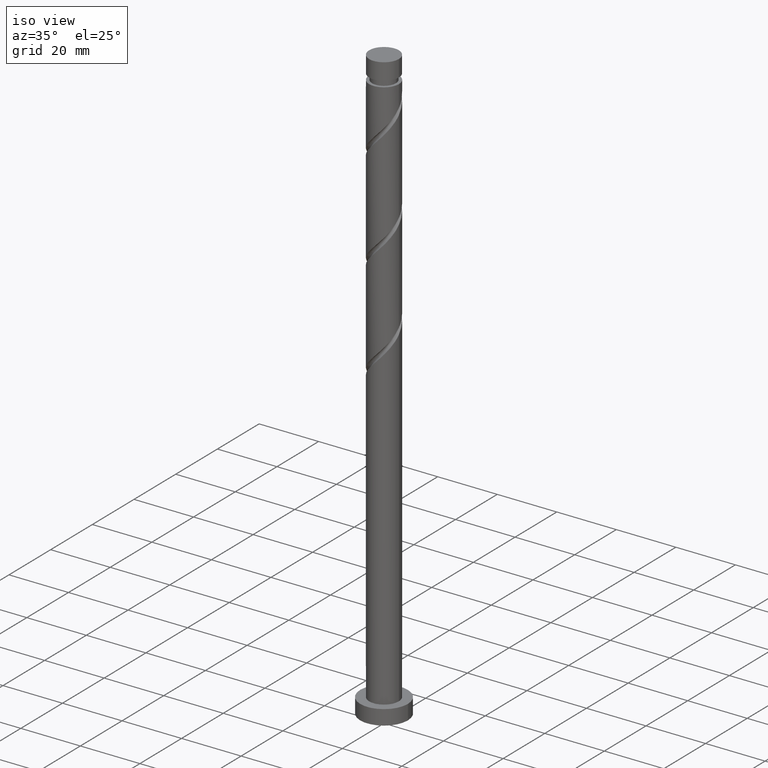
[diagram: clean part render]
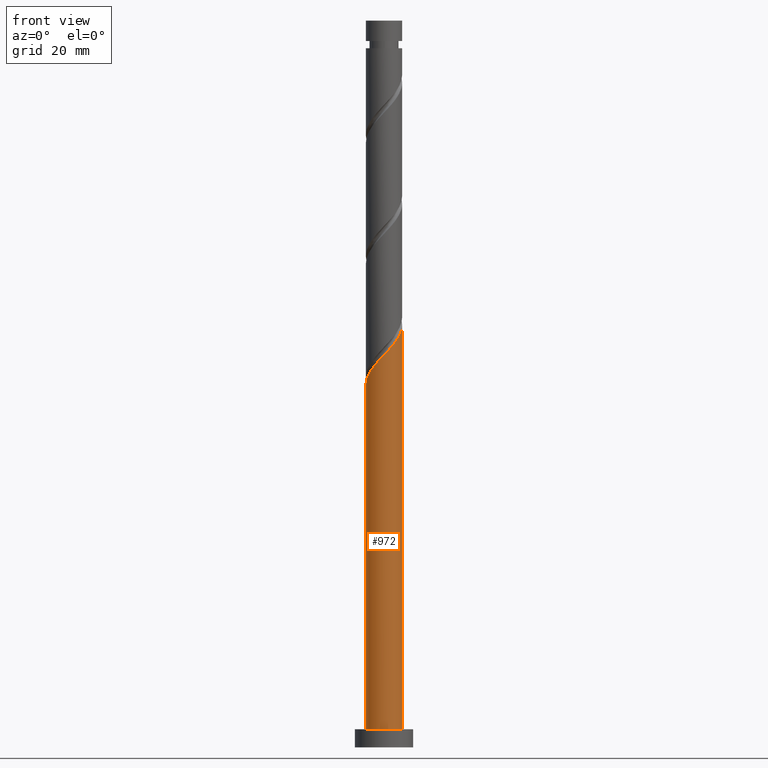
[diagram: tour spotlight — one face highlighted and labeled with its STEP entity id]
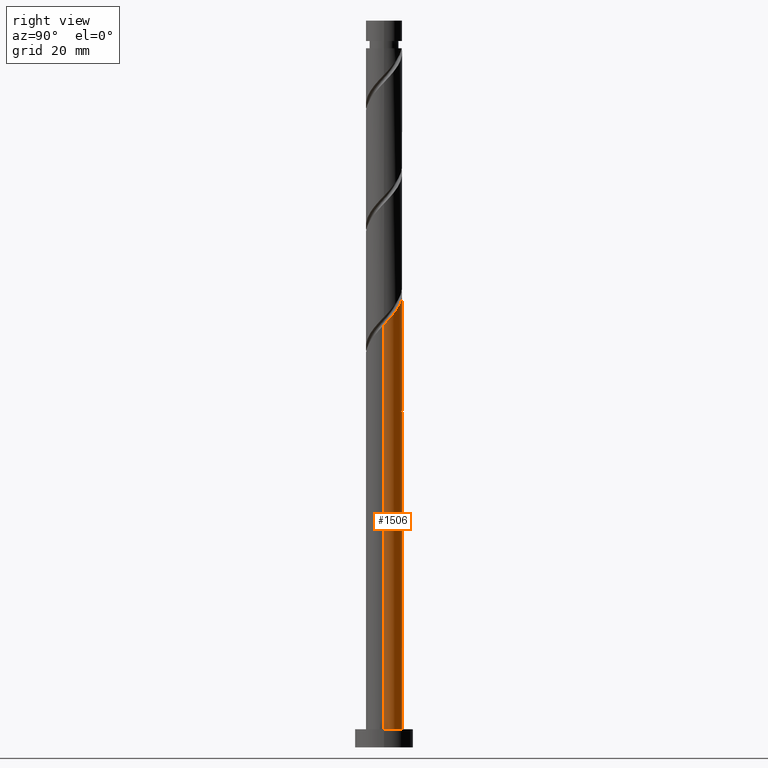
[diagram: tour spotlight — one face highlighted and labeled with its STEP entity id]
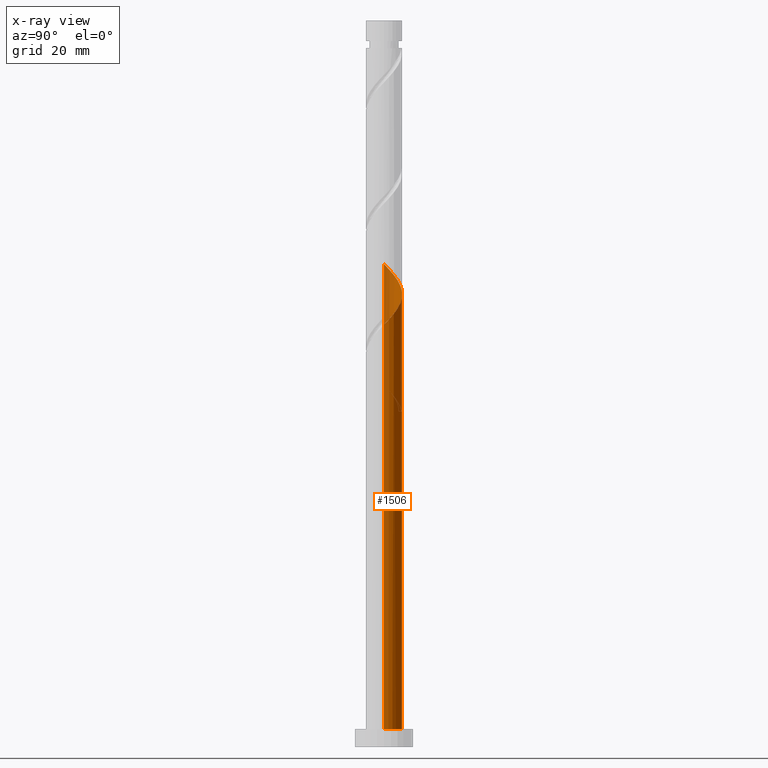
[diagram: x-ray of the same camera — body ghosted, this tour face saturated]
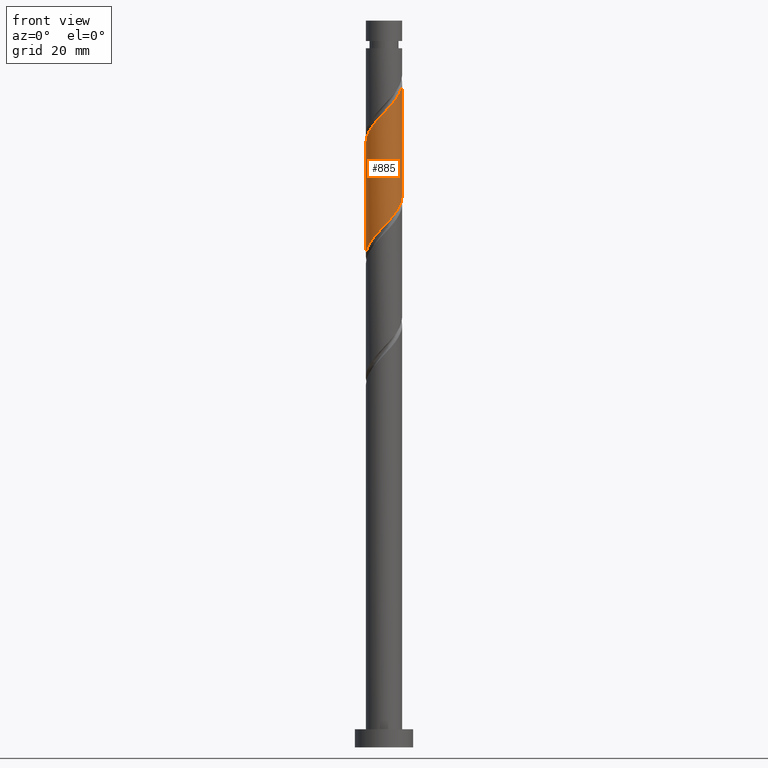
[diagram: tour spotlight — one face highlighted and labeled with its STEP entity id]
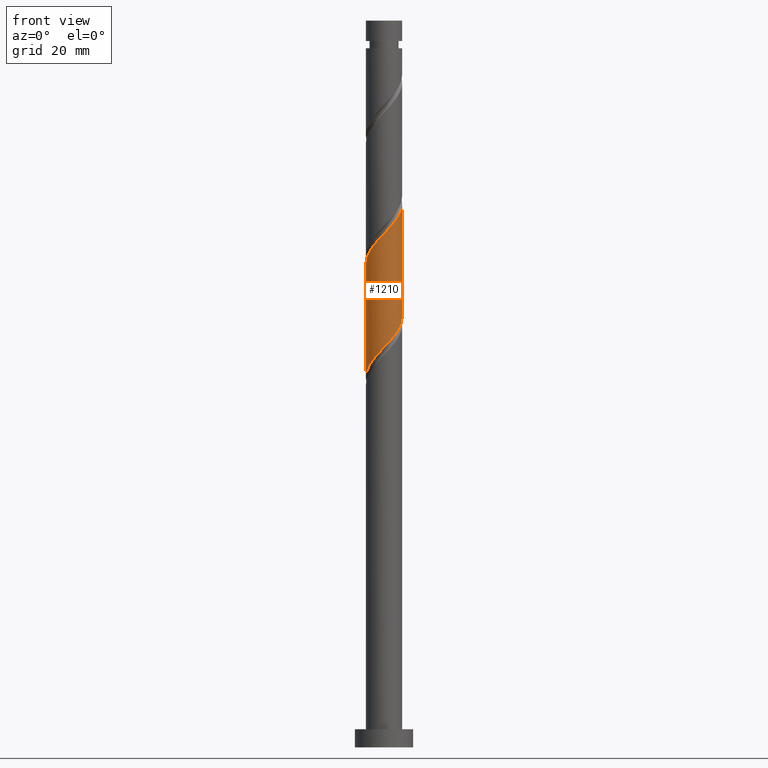
[diagram: tour spotlight — one face highlighted and labeled with its STEP entity id]
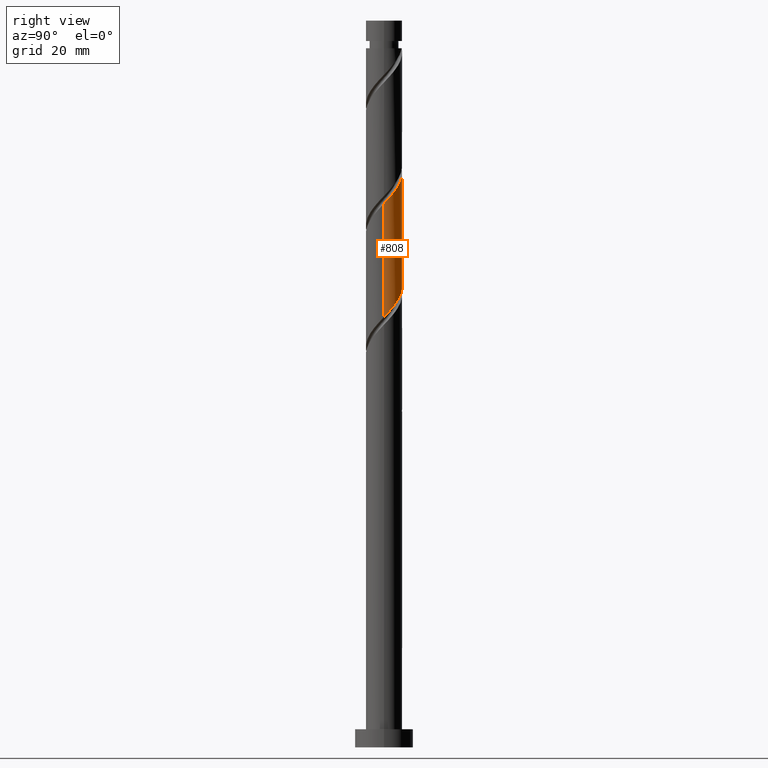
[diagram: tour spotlight — one face highlighted and labeled with its STEP entity id]
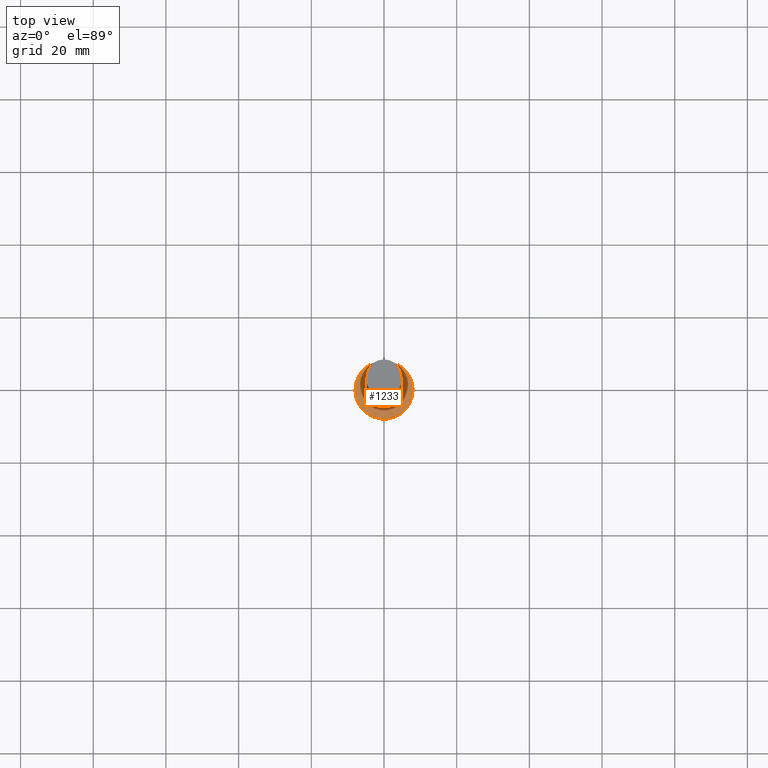
[diagram: tour spotlight — one face highlighted and labeled with its STEP entity id]
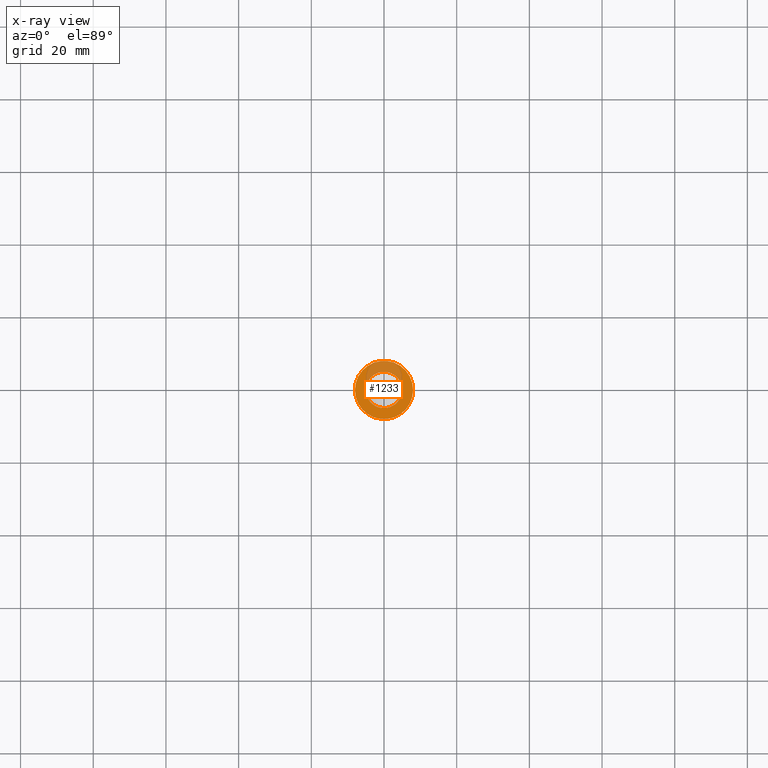
[diagram: x-ray of the same camera — body ghosted, this tour face saturated]
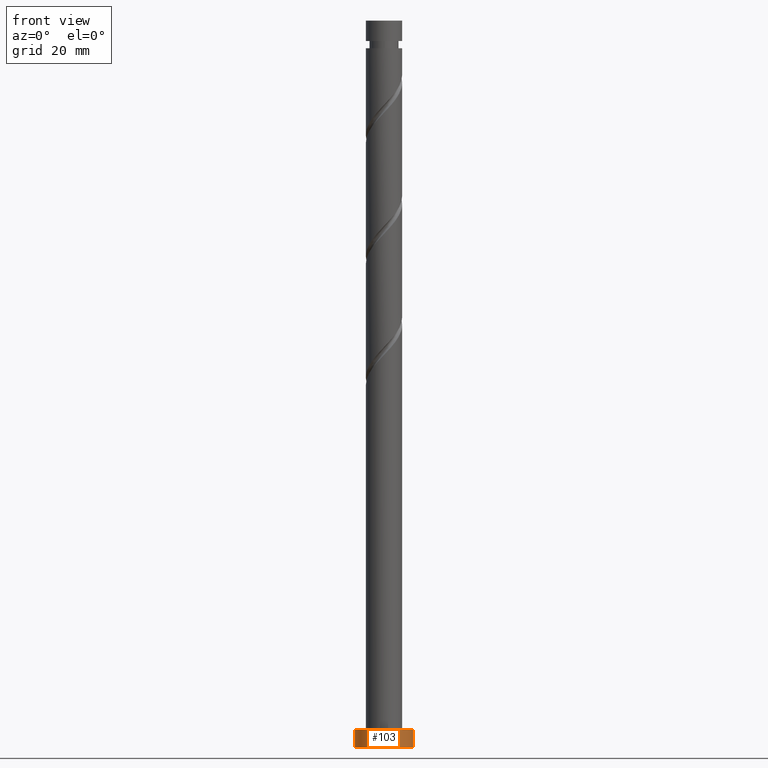
[diagram: tour spotlight — one face highlighted and labeled with its STEP entity id]
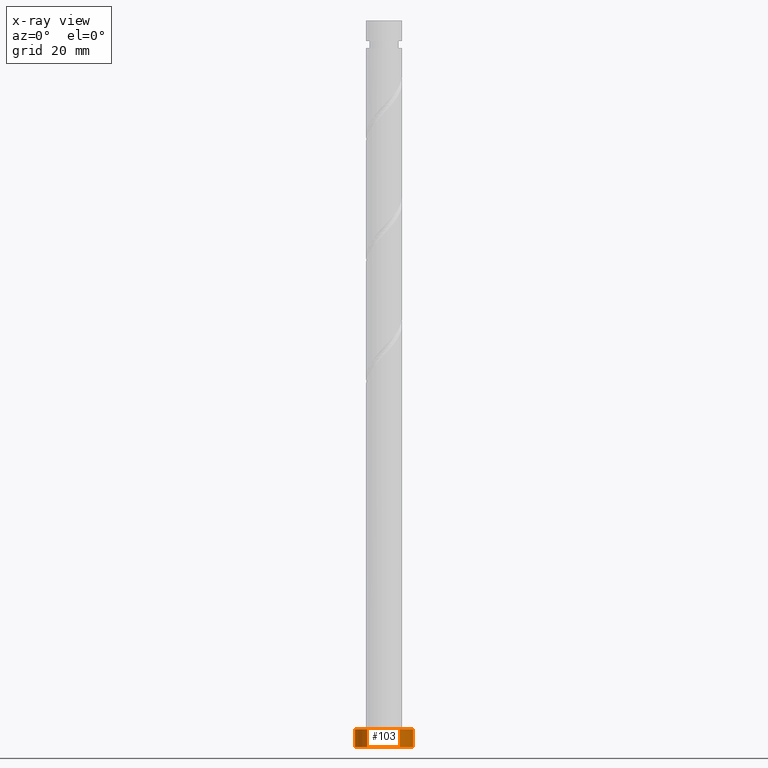
[diagram: x-ray of the same camera — body ghosted, this tour face saturated]
A machine part: a face-by-face anatomy tour. The part has 21 B-rep faces; the first image is the clean iso view, then the 7 largest visible faces are spotlighted one at a time (largest first), each with its STEP entity span.

Face 1 — front view, entity #972. In plain terms, the highlighted cylindrical surface (edge-blend (fillet) strip) has radius 5 mm, axis along (-0, -0, -1).
Definition (entity closure, byte-faithful):
#16 = CARTESIAN_POINT ( 'NONE',  ( 2.818510091388755967, -4.182022282074168373, 111.1372067236282390 ) ) ;
#21 = CARTESIAN_POINT ( 'NONE',  ( -0.3071292586678983083, -4.990558247177381723, 107.6649845014059963 ) ) ;
#51 = CARTESIAN_POINT ( 'NONE',  ( -5.000000000000000888, 0.000000000000000000, 5.000000000000000000 ) ) ;
#71 = ORIENTED_EDGE ( 'NONE', *, *, #1421, .F. ) ;
#94 = VERTEX_POINT ( 'NONE', #760 ) ;
#95 = CYLINDRICAL_SURFACE ( 'NONE', #938, 5.000000000000000888 ) ;
#111 = VECTOR ( 'NONE', #348, 1000.000000000000000 ) ;
#124 = CARTESIAN_POINT ( 'NONE',  ( -2.212482489774419747, -4.531912481002548176, 105.5816511680726819 ) ) ;
#131 = EDGE_CURVE ( 'NONE', #1549, #1519, #1623, .T. ) ;
#151 = CARTESIAN_POINT ( 'NONE',  ( -4.475514850455501126, -2.229297383336809268, 102.1094289458504250 ) ) ;
#211 = CARTESIAN_POINT ( 'NONE',  ( 0.000000000000000000, 0.000000000000000000, 5.000000000000000000 ) ) ;
#245 = LINE ( 'NONE', #1465, #321 ) ;
#256 = CARTESIAN_POINT ( 'NONE',  ( 3.804858702572663454, -3.310039237906727827, 112.5260956125171390 ) ) ;
#279 = CARTESIAN_POINT ( 'NONE',  ( -0.9641487162641765307, -4.950123913191591285, 106.9705400569615534 ) ) ;
#301 = ORIENTED_EDGE ( 'NONE', *, *, #719, .T. ) ;
#321 = VECTOR ( 'NONE', #1031, 1000.000000000000000 ) ;
#348 = DIRECTION ( 'NONE',  ( -0.000000000000000000, -0.000000000000000000, -1.000000000000000000 ) ) ;
#388 = CARTESIAN_POINT ( 'NONE',  ( -1.588315603019299083, -4.741018197097066178, 106.2760956125170964 ) ) ;
#392 = CARTESIAN_POINT ( 'NONE',  ( 0.3498901989283799696, -5.030992581163177491, 108.3594289458504534 ) ) ;
#405 = CARTESIAN_POINT ( 'NONE',  ( -4.900000000000007461, -0.9949874371066222967, 100.7205400569615250 ) ) ;
#499 = VERTEX_POINT ( 'NONE', #723 ) ;
#500 = CARTESIAN_POINT ( 'NONE',  ( 0.000000000000000000, 0.000000000000000000, 200.0000000000000000 ) ) ;
#512 = CARTESIAN_POINT ( 'NONE',  ( 4.950123913191591285, -0.9641487162641788622, 115.3038733902949247 ) ) ;
#537 = CARTESIAN_POINT ( 'NONE',  ( 4.990558247177381723, -0.3071292586679009173, 115.9983178347393107 ) ) ;
#615 = DIRECTION ( 'NONE',  ( -0.000000000000000000, -0.000000000000000000, -1.000000000000000000 ) ) ;
#672 = CARTESIAN_POINT ( 'NONE',  ( 4.531912481002548176, -2.212482489774419747, 113.9149845014060389 ) ) ;
#680 = CARTESIAN_POINT ( 'NONE',  ( 5.000000000000007994, 5.682438088575634963E-16, 116.3236400684181575 ) ) ;
#719 = EDGE_CURVE ( 'NONE', #94, #1549, #1160, .T. ) ;
#723 = CARTESIAN_POINT ( 'NONE',  ( 5.000000000000007994, 5.682438088575634963E-16, 116.3236400684181575 ) ) ;
#741 = CARTESIAN_POINT ( 'NONE',  ( -5.000000000000000888, 0.000000000000000000, 200.0000000000000000 ) ) ;
#752 = EDGE_CURVE ( 'NONE', #499, #1519, #245, .T. ) ;
#760 = CARTESIAN_POINT ( 'NONE',  ( -5.000000000000007994, -3.678630973130542639E-15, 99.65697340175148611 ) ) ;
#767 =( BOUNDED_CURVE ( )  B_SPLINE_CURVE ( 2, ( #921, #1483, #405, #930, #151, #1232, #1502, #1071, #1744, #124, #388, #279, #21, #392, #1647, #785, #1638, #16, #952, #256, #1512, #672, #1751, #512, #537, #819, #680 ),
 .UNSPECIFIED., .F., .T. ) 
 B_SPLINE_CURVE_WITH_KNOTS ( ( 3, 2, 2, 2, 2, 2, 2, 2, 2, 2, 2, 2, 2, 3 ),
 ( 0.05453176698144627382, 0.06250000000000000000, 0.07291666666666662966, 0.08333333333333337034, 0.09375000000000000000, 0.1041666666666666297, 0.1145833333333333703, 0.1250000000000000000, 0.1354166666666666297, 0.1458333333333333703, 0.1562500000000000000, 0.1666666666666666297, 0.1770833333333333703, 0.1795317669814462669 ),
 .UNSPECIFIED. ) 
 CURVE ( )  GEOMETRIC_REPRESENTATION_ITEM ( )  RATIONAL_B_SPLINE_CURVE ( ( 0.9062941362546439450, 0.9031415850403481382, 0.9090909090909238266, 0.9013135103398419723, 0.9090909090909238266, 0.9013135103398419723, 0.9090909090909238266, 0.9013135103398419723, 0.9090909090909238266, 0.9013135103398419723, 0.9090909090909238266, 0.9013135103398419723, 0.9090909090909238266, 0.9013135103398419723, 0.9090909090909238266, 0.9013135103398419723, 0.9090909090909238266, 0.9013135103398419723, 0.9090909090909238266, 0.9013135103398419723, 0.9090909090909238266, 0.9013135103398419723, 0.9090909090909238266, 0.9013135103398419723, 0.9090909090909238266, 0.9072628343904175496, 0.9062941362546441670 ) ) 
 REPRESENTATION_ITEM ( '' )  );
#785 = CARTESIAN_POINT ( 'NONE',  ( 1.640084675284862570, -4.769007418836840984, 109.7483178347393249 ) ) ;
#819 = CARTESIAN_POINT ( 'NONE',  ( 5.000000000000007994, -0.1537097582883740210, 116.1604763803900084 ) ) ;
#919 = AXIS2_PLACEMENT_3D ( 'NONE', #211, #1279, #1300 ) ;
#921 = CARTESIAN_POINT ( 'NONE',  ( -5.000000000000007994, -3.678630973130542639E-15, 99.65697340175148611 ) ) ;
#930 = CARTESIAN_POINT ( 'NONE',  ( -4.769007418836840984, -1.640084675284862570, 101.4149845014060105 ) ) ;
#938 = AXIS2_PLACEMENT_3D ( 'NONE', #500, #615, #1040 ) ;
#952 = CARTESIAN_POINT ( 'NONE',  ( 3.311684396980709266, -3.746030759990445880, 111.8316511680726251 ) ) ;
#972 = ADVANCED_FACE ( 'NONE', ( #1583 ), #95, .T. ) ;
#1031 = DIRECTION ( 'NONE',  ( -0.000000000000000000, -0.000000000000000000, -1.000000000000000000 ) ) ;
#1040 = DIRECTION ( 'NONE',  ( -1.000000000000000000, 0.000000000000000000, 0.000000000000000000 ) ) ;
#1071 = CARTESIAN_POINT ( 'NONE',  ( -3.310039237906727827, -3.804858702572663454, 104.1927622791837962 ) ) ;
#1160 = LINE ( 'NONE', #741, #111 ) ;
#1213 = CARTESIAN_POINT ( 'NONE',  ( 5.000000000000000888, 6.123233995736767268E-16, 5.000000000000000000 ) ) ;
#1231 = ORIENTED_EDGE ( 'NONE', *, *, #752, .F. ) ;
#1232 = CARTESIAN_POINT ( 'NONE',  ( -4.182022282074166597, -2.818510091388756855, 102.8038733902949105 ) ) ;
#1279 = DIRECTION ( 'NONE',  ( 0.000000000000000000, 0.000000000000000000, 1.000000000000000000 ) ) ;
#1300 = DIRECTION ( 'NONE',  ( 1.000000000000000000, 0.000000000000000000, 0.000000000000000000 ) ) ;
#1421 = EDGE_CURVE ( 'NONE', #94, #499, #767, .T. ) ;
#1465 = CARTESIAN_POINT ( 'NONE',  ( 5.000000000000000888, 6.123233995736767268E-16, 200.0000000000000000 ) ) ;
#1483 = CARTESIAN_POINT ( 'NONE',  ( -5.000000000000009770, -0.5025189076296043833, 100.1903997709407861 ) ) ;
#1502 = CARTESIAN_POINT ( 'NONE',  ( -3.746030759990444992, -3.311684396980709266, 103.4983178347393391 ) ) ;
#1512 = CARTESIAN_POINT ( 'NONE',  ( 4.168385591787602706, -2.761260863840573343, 113.2205400569615392 ) ) ;
#1519 = VERTEX_POINT ( 'NONE', #1213 ) ;
#1549 = VERTEX_POINT ( 'NONE', #51 ) ;
#1583 = FACE_OUTER_BOUND ( 'NONE', #1636, .T. ) ;
#1623 = CIRCLE ( 'NONE', #919, 5.000000000000000888 ) ;
#1626 = ORIENTED_EDGE ( 'NONE', *, *, #131, .T. ) ;
#1636 = EDGE_LOOP ( 'NONE', ( #1231, #71, #301, #1626 ) ) ;
#1638 = CARTESIAN_POINT ( 'NONE',  ( 2.229297383336807936, -4.475514850455502902, 110.4427622791837678 ) ) ;
#1647 = CARTESIAN_POINT ( 'NONE',  ( 0.9949874371066216305, -4.900000000000007461, 109.0538733902948820 ) ) ;
#1744 = CARTESIAN_POINT ( 'NONE',  ( -2.761260863840572455, -4.168385591787604483, 104.8872067236281822 ) ) ;
#1751 = CARTESIAN_POINT ( 'NONE',  ( 4.741018197097066178, -1.588315603019299305, 114.6094289458504107 ) ) ;

Face 2 — right view, entity #1506. An x-ray twin of the same camera follows (body ghosted, this face saturated) — the face is partly hidden behind the body. In plain terms, the highlighted cylindrical surface (edge-blend (fillet) strip) has radius 5 mm, axis along (-0, -0, -1).
Definition (entity closure, byte-faithful):
#17 = EDGE_CURVE ( 'NONE', #1519, #1549, #1159, .T. ) ;
#23 = CARTESIAN_POINT ( 'NONE',  ( -5.000000000000000000, 6.310497035207728406E-15, 101.7841067121716350 ) ) ;
#51 = CARTESIAN_POINT ( 'NONE',  ( -5.000000000000000888, 0.000000000000000000, 5.000000000000000000 ) ) ;
#53 = CARTESIAN_POINT ( 'NONE',  ( -4.531912481002548176, 2.212482489774418859, 97.24831783473933910 ) ) ;
#58 = EDGE_CURVE ( 'NONE', #1702, #1205, #120, .T. ) ;
#94 = VERTEX_POINT ( 'NONE', #760 ) ;
#96 = DIRECTION ( 'NONE',  ( 0.000000000000000000, 0.000000000000000000, 1.000000000000000000 ) ) ;
#97 = CARTESIAN_POINT ( 'NONE',  ( -3.311684396980709266, 3.746030759990444992, 128.4983178347392538 ) ) ;
#111 = VECTOR ( 'NONE', #348, 1000.000000000000000 ) ;
#115 = ORIENTED_EDGE ( 'NONE', *, *, #1265, .F. ) ;
#120 = LINE ( 'NONE', #1349, #1507 ) ;
#135 = CARTESIAN_POINT ( 'NONE',  ( -4.899999999999997691, 0.9949874371066218526, 100.7205400569615250 ) ) ;
#189 = ORIENTED_EDGE ( 'NONE', *, *, #58, .F. ) ;
#245 = LINE ( 'NONE', #1465, #321 ) ;
#261 = CARTESIAN_POINT ( 'NONE',  ( -3.804858702572663898, 3.310039237906726939, 129.1927622791837962 ) ) ;
#267 = CARTESIAN_POINT ( 'NONE',  ( -3.746030759990437886, 3.311684396980705714, 97.94276227918379618 ) ) ;
#286 = CARTESIAN_POINT ( 'NONE',  ( -4.950123913191591285, 0.9641487162641765307, 98.63720672362823905 ) ) ;
#290 = AXIS2_PLACEMENT_3D ( 'NONE', #1527, #1385, #1550 ) ;
#305 = EDGE_CURVE ( 'NONE', #499, #1702, #1288, .T. ) ;
#321 = VECTOR ( 'NONE', #1031, 1000.000000000000000 ) ;
#322 = DIRECTION ( 'NONE',  ( 1.000000000000000000, 0.000000000000000000, 0.000000000000000000 ) ) ;
#348 = DIRECTION ( 'NONE',  ( -0.000000000000000000, -0.000000000000000000, -1.000000000000000000 ) ) ;
#378 = AXIS2_PLACEMENT_3D ( 'NONE', #1310, #96, #322 ) ;
#379 = CARTESIAN_POINT ( 'NONE',  ( -5.000000000000000000, 0.5025189076296107116, 101.2506803429823634 ) ) ;
#421 = CARTESIAN_POINT ( 'NONE',  ( 4.475514850455502902, 2.229297383336807048, 118.7760956125171106 ) ) ;
#433 = CARTESIAN_POINT ( 'NONE',  ( -5.000000000000007994, -3.678630973130542639E-15, 99.65697340175148611 ) ) ;
#499 = VERTEX_POINT ( 'NONE', #723 ) ;
#502 = CYLINDRICAL_SURFACE ( 'NONE', #774, 5.000000000000000888 ) ;
#505 = CARTESIAN_POINT ( 'NONE',  ( -4.741018197097066178, 1.588315603019297750, 131.2760956125170821 ) ) ;
#518 = CARTESIAN_POINT ( 'NONE',  ( -4.990558247177381723, 0.3071292586678981418, 132.6649845014059679 ) ) ;
#539 = CARTESIAN_POINT ( 'NONE',  ( -2.761260863840567126, 4.168385591787600042, 96.55387339029486782 ) ) ;
#558 = CARTESIAN_POINT ( 'NONE',  ( -4.168385591787605371, 2.761260863840572455, 96.55387339029485361 ) ) ;
#567 = CARTESIAN_POINT ( 'NONE',  ( 0.3071292586679011949, 4.990558247177381723, 124.3316511680726109 ) ) ;
#572 = CARTESIAN_POINT ( 'NONE',  ( -2.818510091388759076, 4.182022282074165709, 127.8038733902948820 ) ) ;
#582 = CARTESIAN_POINT ( 'NONE',  ( -3.311684396980709266, 3.746030759990444992, 95.16498450140598209 ) ) ;
#605 = CARTESIAN_POINT ( 'NONE',  ( 3.310039237906730047, 3.804858702572660789, 120.8594289458504392 ) ) ;
#655 = DIRECTION ( 'NONE',  ( -1.000000000000000000, 0.000000000000000000, 0.000000000000000000 ) ) ;
#664 = CARTESIAN_POINT ( 'NONE',  ( -1.588315603019293532, 4.741018197097059961, 95.16498450140598209 ) ) ;
#667 = CARTESIAN_POINT ( 'NONE',  ( -4.168385591787605371, 2.761260863840572455, 129.8872067236281964 ) ) ;
#690 = CARTESIAN_POINT ( 'NONE',  ( -1.640084675284863458, 4.769007418836840095, 93.08165116807266770 ) ) ;
#698 = CARTESIAN_POINT ( 'NONE',  ( 4.769007418836841872, 1.640084675284862348, 118.0816511680726819 ) ) ;
#708 = CARTESIAN_POINT ( 'NONE',  ( 0.9641487162641793063, 4.950123913191591285, 123.6372067236282248 ) ) ;
#718 = CARTESIAN_POINT ( 'NONE',  ( -0.9949874371066211864, 4.900000000000007461, 125.7205400569614824 ) ) ;
#719 = EDGE_CURVE ( 'NONE', #94, #1549, #1160, .T. ) ;
#723 = CARTESIAN_POINT ( 'NONE',  ( 5.000000000000007994, 5.682438088575634963E-16, 116.3236400684181575 ) ) ;
#741 = CARTESIAN_POINT ( 'NONE',  ( -5.000000000000000888, 0.000000000000000000, 200.0000000000000000 ) ) ;
#752 = EDGE_CURVE ( 'NONE', #499, #1519, #245, .T. ) ;
#759 = CARTESIAN_POINT ( 'NONE',  ( 0.9949874371066229628, 4.899999999999998579, 92.38720672362821063 ) ) ;
#760 = CARTESIAN_POINT ( 'NONE',  ( -5.000000000000007994, -3.678630973130542639E-15, 99.65697340175148611 ) ) ;
#774 = AXIS2_PLACEMENT_3D ( 'NONE', #1055, #1609, #655 ) ;
#784 = VERTEX_POINT ( 'NONE', #1191 ) ;
#838 = CARTESIAN_POINT ( 'NONE',  ( 5.000000000000007994, 5.682438088575634963E-16, 116.3236400684181575 ) ) ;
#852 = CARTESIAN_POINT ( 'NONE',  ( 2.761260863840572899, 4.168385591787602706, 121.5538733902948252 ) ) ;
#862 =( BOUNDED_CURVE ( )  B_SPLINE_CURVE ( 2, ( #974, #690, #1529, #1269, #582, #1697, #558, #53, #1253, #286, #1671, #1129, #433 ),
 .UNSPECIFIED., .F., .T. ) 
 B_SPLINE_CURVE_WITH_KNOTS ( ( 3, 2, 2, 2, 2, 2, 3 ),
 ( 0.000000000000000000, 0.01041666666666662966, 0.02083333333333337034, 0.03125000000000000000, 0.04166666666666662966, 0.05208333333333336340, 0.05453176698144627382 ),
 .UNSPECIFIED. ) 
 CURVE ( )  GEOMETRIC_REPRESENTATION_ITEM ( )  RATIONAL_B_SPLINE_CURVE ( ( 0.9090909090909238266, 0.9013135103398419723, 0.9090909090909238266, 0.9013135103398419723, 0.9090909090909238266, 0.9013135103398419723, 0.9090909090909238266, 0.9013135103398419723, 0.9090909090909238266, 0.9013135103398419723, 0.9090909090909238266, 0.9072628343904174386, 0.9062941362546439450 ) ) 
 REPRESENTATION_ITEM ( '' )  );
#922 = CARTESIAN_POINT ( 'NONE',  ( -4.475514850455493132, 2.229297383336807936, 99.33165116807263928 ) ) ;
#931 = CARTESIAN_POINT ( 'NONE',  ( 0.9949874371066229628, 4.899999999999998579, 92.38720672362822484 ) ) ;
#937 = VERTEX_POINT ( 'NONE', #759 ) ;
#945 = CARTESIAN_POINT ( 'NONE',  ( -5.000000000000007994, -3.678630973130542639E-15, 132.9903067350848005 ) ) ;
#974 = CARTESIAN_POINT ( 'NONE',  ( -0.9949874371066211864, 4.900000000000007461, 92.38720672362821063 ) ) ;
#981 = CARTESIAN_POINT ( 'NONE',  ( 4.182022282074168373, 2.818510091388755079, 119.4705400569615534 ) ) ;
#995 = CARTESIAN_POINT ( 'NONE',  ( -1.640084675284863458, 4.769007418836840095, 126.4149845014060105 ) ) ;
#1002 = ORIENTED_EDGE ( 'NONE', *, *, #305, .F. ) ;
#1031 = DIRECTION ( 'NONE',  ( -0.000000000000000000, -0.000000000000000000, -1.000000000000000000 ) ) ;
#1044 = CARTESIAN_POINT ( 'NONE',  ( 2.212482489774421079, 4.531912481002548176, 122.2483178347393533 ) ) ;
#1055 = CARTESIAN_POINT ( 'NONE',  ( 0.000000000000000000, 0.000000000000000000, 200.0000000000000000 ) ) ;
#1075 = CARTESIAN_POINT ( 'NONE',  ( -4.769007418836832102, 1.640084675284862126, 100.0260956125171390 ) ) ;
#1087 = CARTESIAN_POINT ( 'NONE',  ( -5.000000000000007994, 0.1537097582883761304, 132.8271430470566372 ) ) ;
#1095 = CARTESIAN_POINT ( 'NONE',  ( -0.9641487162641734221, 4.950123913191581515, 94.47054005696156764 ) ) ;
#1099 = EDGE_CURVE ( 'NONE', #1205, #937, #1733, .T. ) ;
#1100 = CARTESIAN_POINT ( 'NONE',  ( -4.950123913191591285, 0.9641487162641765307, 131.9705400569615676 ) ) ;
#1113 = CARTESIAN_POINT ( 'NONE',  ( 5.000000000000008882, 0.5025189076296008306, 116.8570664376074291 ) ) ;
#1129 = CARTESIAN_POINT ( 'NONE',  ( -5.000000000000007105, 0.1537097582883704405, 99.49380971372333704 ) ) ;
#1159 = CIRCLE ( 'NONE', #378, 5.000000000000000888 ) ;
#1160 = LINE ( 'NONE', #741, #111 ) ;
#1170 = CARTESIAN_POINT ( 'NONE',  ( 1.588315603019299527, 4.741018197097066178, 122.9427622791837393 ) ) ;
#1191 = CARTESIAN_POINT ( 'NONE',  ( -0.9949874371066211864, 4.900000000000007461, 92.38720672362821063 ) ) ;
#1205 = VERTEX_POINT ( 'NONE', #1678 ) ;
#1213 = CARTESIAN_POINT ( 'NONE',  ( 5.000000000000000888, 6.123233995736767268E-16, 5.000000000000000000 ) ) ;
#1228 = ORIENTED_EDGE ( 'NONE', *, *, #719, .F. ) ;
#1253 = CARTESIAN_POINT ( 'NONE',  ( -4.741018197097066178, 1.588315603019297750, 97.94276227918376776 ) ) ;
#1258 = CARTESIAN_POINT ( 'NONE',  ( -5.000000000000007994, -3.678630973130542639E-15, 132.9903067350848005 ) ) ;
#1265 = EDGE_CURVE ( 'NONE', #784, #94, #862, .T. ) ;
#1269 = CARTESIAN_POINT ( 'NONE',  ( -2.818510091388759076, 4.182022282074165709, 94.47054005696156764 ) ) ;
#1282 = EDGE_LOOP ( 'NONE', ( #1002, #1567, #1362, #1228, #115, #1607, #1301, #189 ) ) ;
#1288 =( BOUNDED_CURVE ( )  B_SPLINE_CURVE ( 2, ( #838, #1113, #1664, #698, #421, #981, #1537, #605, #852, #1044, #1170, #708, #567, #1457, #718, #995, #1317, #572, #97, #261, #667, #1359, #505, #1100, #518, #1087, #945 ),
 .UNSPECIFIED., .F., .T. ) 
 B_SPLINE_CURVE_WITH_KNOTS ( ( 3, 2, 2, 2, 2, 2, 2, 2, 2, 2, 2, 2, 2, 3 ),
 ( 0.1795317669814462669, 0.1875000000000000000, 0.1979166666666666297, 0.2083333333333333703, 0.2187500000000000000, 0.2291666666666666297, 0.2395833333333333703, 0.2500000000000000000, 0.2604166666666666297, 0.2708333333333333703, 0.2812500000000000000, 0.2916666666666666297, 0.3020833333333333703, 0.3045317669814461836 ),
 .UNSPECIFIED. ) 
 CURVE ( )  GEOMETRIC_REPRESENTATION_ITEM ( )  RATIONAL_B_SPLINE_CURVE ( ( 0.9062941362546441670, 0.9031415850403482493, 0.9090909090909238266, 0.9013135103398419723, 0.9090909090909238266, 0.9013135103398419723, 0.9090909090909238266, 0.9013135103398419723, 0.9090909090909238266, 0.9013135103398419723, 0.9090909090909238266, 0.9013135103398419723, 0.9090909090909238266, 0.9013135103398419723, 0.9090909090909238266, 0.9013135103398419723, 0.9090909090909238266, 0.9013135103398419723, 0.9090909090909238266, 0.9013135103398419723, 0.9090909090909238266, 0.9013135103398419723, 0.9090909090909238266, 0.9013135103398419723, 0.9090909090909238266, 0.9072628343904175496, 0.9062941362546440560 ) ) 
 REPRESENTATION_ITEM ( '' )  );
#1301 = ORIENTED_EDGE ( 'NONE', *, *, #1099, .F. ) ;
#1310 = CARTESIAN_POINT ( 'NONE',  ( 0.000000000000000000, 0.000000000000000000, 5.000000000000000000 ) ) ;
#1317 = CARTESIAN_POINT ( 'NONE',  ( -2.229297383336810157, 4.475514850455501126, 127.1094289458504107 ) ) ;
#1345 = FACE_OUTER_BOUND ( 'NONE', #1282, .T. ) ;
#1349 = CARTESIAN_POINT ( 'NONE',  ( -5.000000000000000888, 0.000000000000000000, 200.0000000000000000 ) ) ;
#1355 = CARTESIAN_POINT ( 'NONE',  ( -4.182022282074157715, 2.818510091388754191, 98.63720672362822484 ) ) ;
#1359 = CARTESIAN_POINT ( 'NONE',  ( -4.531912481002548176, 2.212482489774418859, 130.5816511680726819 ) ) ;
#1362 = ORIENTED_EDGE ( 'NONE', *, *, #17, .T. ) ;
#1385 = DIRECTION ( 'NONE',  ( 0.000000000000000000, -0.000000000000000000, -1.000000000000000000 ) ) ;
#1412 = CIRCLE ( 'NONE', #290, 5.000000000000000888 ) ;
#1457 = CARTESIAN_POINT ( 'NONE',  ( -0.3498901989283768055, 5.030992581163177491, 125.0260956125171106 ) ) ;
#1465 = CARTESIAN_POINT ( 'NONE',  ( 5.000000000000000888, 6.123233995736767268E-16, 200.0000000000000000 ) ) ;
#1484 = CARTESIAN_POINT ( 'NONE',  ( -3.310039237906720277, 3.804858702572659013, 97.24831783473932489 ) ) ;
#1487 = DIRECTION ( 'NONE',  ( -0.000000000000000000, -0.000000000000000000, -1.000000000000000000 ) ) ;
#1493 = CARTESIAN_POINT ( 'NONE',  ( 0.3498901989283822456, 5.030992581163167721, 93.08165116807266770 ) ) ;
#1506 = ADVANCED_FACE ( 'NONE', ( #1345 ), #502, .T. ) ;
#1507 = VECTOR ( 'NONE', #1487, 1000.000000000000000 ) ;
#1519 = VERTEX_POINT ( 'NONE', #1213 ) ;
#1527 = CARTESIAN_POINT ( 'NONE',  ( 0.000000000000000000, 0.000000000000000000, 92.38720672362821063 ) ) ;
#1529 = CARTESIAN_POINT ( 'NONE',  ( -2.229297383336810157, 4.475514850455501126, 93.77609561251706793 ) ) ;
#1537 = CARTESIAN_POINT ( 'NONE',  ( 3.746030759990446768, 3.311684396980707046, 120.1649845014059679 ) ) ;
#1549 = VERTEX_POINT ( 'NONE', #51 ) ;
#1550 = DIRECTION ( 'NONE',  ( -1.000000000000000000, 0.000000000000000000, 0.000000000000000000 ) ) ;
#1567 = ORIENTED_EDGE ( 'NONE', *, *, #752, .T. ) ;
#1582 = EDGE_CURVE ( 'NONE', #784, #937, #1412, .T. ) ;
#1607 = ORIENTED_EDGE ( 'NONE', *, *, #1582, .T. ) ;
#1609 = DIRECTION ( 'NONE',  ( -0.000000000000000000, -0.000000000000000000, -1.000000000000000000 ) ) ;
#1631 = CARTESIAN_POINT ( 'NONE',  ( -2.212482489774413530, 4.531912481002540183, 95.85942894585048180 ) ) ;
#1648 = CARTESIAN_POINT ( 'NONE',  ( -0.3071292586678955883, 4.990558247177374618, 93.77609561251706793 ) ) ;
#1664 = CARTESIAN_POINT ( 'NONE',  ( 4.900000000000007461, 0.9949874371066216305, 117.3872067236282106 ) ) ;
#1671 = CARTESIAN_POINT ( 'NONE',  ( -4.990558247177381723, 0.3071292586678981418, 99.33165116807262507 ) ) ;
#1678 = CARTESIAN_POINT ( 'NONE',  ( -5.000000000000000000, 6.310497035207727617E-15, 101.7841067121716350 ) ) ;
#1697 = CARTESIAN_POINT ( 'NONE',  ( -3.804858702572663898, 3.310039237906726939, 95.85942894585045337 ) ) ;
#1702 = VERTEX_POINT ( 'NONE', #1258 ) ;
#1733 =( BOUNDED_CURVE ( )  B_SPLINE_CURVE ( 2, ( #23, #379, #135, #1075, #922, #1355, #267, #1484, #539, #1631, #664, #1095, #1648, #1493, #931 ),
 .UNSPECIFIED., .F., .T. ) 
 B_SPLINE_CURVE_WITH_KNOTS ( ( 3, 2, 2, 2, 2, 2, 2, 3 ),
 ( 0.9295317669814463502, 0.9375000000000000000, 0.9479166666666666297, 0.9583333333333333703, 0.9687500000000000000, 0.9791666666666666297, 0.9895833333333333703, 1.000000000000000000 ),
 .UNSPECIFIED. ) 
 CURVE ( )  GEOMETRIC_REPRESENTATION_ITEM ( )  RATIONAL_B_SPLINE_CURVE ( ( 0.9062941362546370616, 0.9031415850403414769, 0.9090909090909168322, 0.9013135103398353110, 0.9090909090909168322, 0.9013135103398353110, 0.9090909090909168322, 0.9013135103398353110, 0.9090909090909168322, 0.9013135103398353110, 0.9090909090909168322, 0.9013135103398353110, 0.9090909090909168322, 0.9013135103398353110, 0.9090909090909168322 ) ) 
 REPRESENTATION_ITEM ( '' )  );

Face 3 — front view, entity #885. In plain terms, the highlighted cylindrical surface (edge-blend (fillet) strip) has radius 5 mm, axis along (-0, -0, -1).
Definition (entity closure, byte-faithful):
#1 = LINE ( 'NONE', #513, #1695 ) ;
#37 = CARTESIAN_POINT ( 'NONE',  ( 2.212482489774412642, -4.531912481002542847, 145.8594289458504250 ) ) ;
#59 = CARTESIAN_POINT ( 'NONE',  ( -1.640084675284863236, -4.769007418836832102, 141.6927622791837962 ) ) ;
#126 = DIRECTION ( 'NONE',  ( -0.000000000000000000, -0.000000000000000000, -1.000000000000000000 ) ) ;
#146 = CARTESIAN_POINT ( 'NONE',  ( -5.000000000000000888, 0.000000000000000000, 200.0000000000000000 ) ) ;
#147 = ORIENTED_EDGE ( 'NONE', *, *, #1128, .F. ) ;
#171 = ORIENTED_EDGE ( 'NONE', *, *, #1072, .F. ) ;
#173 = CARTESIAN_POINT ( 'NONE',  ( -0.3498901989283836333, -5.030992581163167721, 143.0816511680726535 ) ) ;
#175 = CARTESIAN_POINT ( 'NONE',  ( -0.3071292586678983083, -4.990558247177381723, 174.3316511680726251 ) ) ;
#183 = ORIENTED_EDGE ( 'NONE', *, *, #377, .T. ) ;
#184 = CARTESIAN_POINT ( 'NONE',  ( 4.531912481002548176, -2.212482489774419747, 180.5816511680727388 ) ) ;
#192 = CARTESIAN_POINT ( 'NONE',  ( -4.999999999999999112, 6.310497035207726039E-15, 135.1174400455049636 ) ) ;
#194 = CARTESIAN_POINT ( 'NONE',  ( 4.990558247177381723, -0.3071292586679009173, 182.6649845014059395 ) ) ;
#201 = CARTESIAN_POINT ( 'NONE',  ( -0.9949874371066222967, -4.899999999999997691, 142.3872067236281680 ) ) ;
#203 = CARTESIAN_POINT ( 'NONE',  ( -3.310039237906727827, -3.804858702572663454, 170.8594289458505102 ) ) ;
#230 = DIRECTION ( 'NONE',  ( -0.000000000000000000, -0.000000000000000000, -1.000000000000000000 ) ) ;
#247 = ORIENTED_EDGE ( 'NONE', *, *, #488, .F. ) ;
#313 =( BOUNDED_CURVE ( )  B_SPLINE_CURVE ( 2, ( #407, #531, #1082, #1639, #953, #1286, #998, #1413, #863, #37, #853, #989, #1423, #173, #201, #59, #1405, #710, #1123, #1543, #574, #442, #963, #1665, #449, #1395, #192 ),
 .UNSPECIFIED., .F., .T. ) 
 B_SPLINE_CURVE_WITH_KNOTS ( ( 3, 2, 2, 2, 2, 2, 2, 2, 2, 2, 2, 2, 2, 3 ),
 ( 0.5545317669814461281, 0.5625000000000000000, 0.5729166666666666297, 0.5833333333333333703, 0.5937500000000000000, 0.6041666666666666297, 0.6145833333333333703, 0.6250000000000000000, 0.6354166666666666297, 0.6458333333333333703, 0.6562500000000000000, 0.6666666666666666297, 0.6770833333333333703, 0.6795317669814462391 ),
 .UNSPECIFIED. ) 
 CURVE ( )  GEOMETRIC_REPRESENTATION_ITEM ( )  RATIONAL_B_SPLINE_CURVE ( ( 0.9062941362546373947, 0.9031415850403413659, 0.9090909090909168322, 0.9013135103398353110, 0.9090909090909168322, 0.9013135103398353110, 0.9090909090909168322, 0.9013135103398353110, 0.9090909090909168322, 0.9013135103398353110, 0.9090909090909168322, 0.9013135103398353110, 0.9090909090909168322, 0.9013135103398353110, 0.9090909090909168322, 0.9013135103398353110, 0.9090909090909168322, 0.9013135103398353110, 0.9090909090909168322, 0.9013135103398353110, 0.9090909090909168322, 0.9013135103398353110, 0.9090909090909168322, 0.9013135103398353110, 0.9090909090909168322, 0.9072628343904106663, 0.9062941362546371726 ) ) 
 REPRESENTATION_ITEM ( '' )  );
#318 = CARTESIAN_POINT ( 'NONE',  ( -4.900000000000007461, -0.9949874371066222967, 167.3872067236281964 ) ) ;
#330 = CARTESIAN_POINT ( 'NONE',  ( 5.000000000000007994, -0.1537097582883704128, 182.8271430470566941 ) ) ;
#363 =( BOUNDED_CURVE ( )  B_SPLINE_CURVE ( 2, ( #849, #1278, #318, #552, #976, #459, #560, #203, #1007, #733, #1407, #1124, #175, #424, #701, #444, #1138, #1433, #1673, #1681, #1531, #184, #1565, #1687, #194, #330, #1290 ),
 .UNSPECIFIED., .F., .T. ) 
 B_SPLINE_CURVE_WITH_KNOTS ( ( 3, 2, 2, 2, 2, 2, 2, 2, 2, 2, 2, 2, 2, 3 ),
 ( 0.5545317669814462391, 0.5625000000000000000, 0.5729166666666667407, 0.5833333333333332593, 0.5937500000000000000, 0.6041666666666667407, 0.6145833333333332593, 0.6250000000000000000, 0.6354166666666667407, 0.6458333333333332593, 0.6562500000000000000, 0.6666666666666667407, 0.6770833333333332593, 0.6795317669814462391 ),
 .UNSPECIFIED. ) 
 CURVE ( )  GEOMETRIC_REPRESENTATION_ITEM ( )  RATIONAL_B_SPLINE_CURVE ( ( 0.9062941362546439450, 0.9031415850403482493, 0.9090909090909238266, 0.9013135103398419723, 0.9090909090909238266, 0.9013135103398419723, 0.9090909090909238266, 0.9013135103398419723, 0.9090909090909238266, 0.9013135103398419723, 0.9090909090909238266, 0.9013135103398419723, 0.9090909090909238266, 0.9013135103398419723, 0.9090909090909238266, 0.9013135103398419723, 0.9090909090909238266, 0.9013135103398419723, 0.9090909090909238266, 0.9013135103398419723, 0.9090909090909238266, 0.9013135103398419723, 0.9090909090909238266, 0.9013135103398419723, 0.9090909090909238266, 0.9072628343904174386, 0.9062941362546439450 ) ) 
 REPRESENTATION_ITEM ( '' )  );
#374 = VERTEX_POINT ( 'NONE', #1246 ) ;
#377 = EDGE_CURVE ( 'NONE', #652, #970, #822, .T. ) ;
#404 = EDGE_LOOP ( 'NONE', ( #171, #247, #183, #147 ) ) ;
#407 = CARTESIAN_POINT ( 'NONE',  ( 5.000000000000000888, 6.415173526313069063E-15, 151.7841067121716208 ) ) ;
#424 = CARTESIAN_POINT ( 'NONE',  ( 0.3498901989283799696, -5.030992581163177491, 175.0260956125171106 ) ) ;
#442 = CARTESIAN_POINT ( 'NONE',  ( -4.531912481002542847, -2.212482489774412642, 137.5260956125171106 ) ) ;
#444 = CARTESIAN_POINT ( 'NONE',  ( 1.640084675284862570, -4.769007418836840984, 176.4149845014059963 ) ) ;
#449 = CARTESIAN_POINT ( 'NONE',  ( -4.990558247177374618, -0.3071292586678949221, 135.4427622791837678 ) ) ;
#459 = CARTESIAN_POINT ( 'NONE',  ( -4.182022282074166597, -2.818510091388756855, 169.4705400569615392 ) ) ;
#478 = CARTESIAN_POINT ( 'NONE',  ( -5.000000000000000000, 6.310497035207727617E-15, 135.1174400455049636 ) ) ;
#488 = EDGE_CURVE ( 'NONE', #652, #374, #363, .T. ) ;
#513 = CARTESIAN_POINT ( 'NONE',  ( 5.000000000000000888, 6.123233995736767268E-16, 200.0000000000000000 ) ) ;
#531 = CARTESIAN_POINT ( 'NONE',  ( 5.000000000000001776, -0.5025189076295973889, 151.2506803429823776 ) ) ;
#552 = CARTESIAN_POINT ( 'NONE',  ( -4.769007418836840984, -1.640084675284862570, 168.0816511680727103 ) ) ;
#560 = CARTESIAN_POINT ( 'NONE',  ( -3.746030759990444992, -3.311684396980709266, 170.1649845014059679 ) ) ;
#574 = CARTESIAN_POINT ( 'NONE',  ( -4.168385591787598266, -2.761260863840566238, 138.2205400569615676 ) ) ;
#592 = CYLINDRICAL_SURFACE ( 'NONE', #783, 5.000000000000000888 ) ;
#603 = DIRECTION ( 'NONE',  ( -1.000000000000000000, 0.000000000000000000, 0.000000000000000000 ) ) ;
#652 = VERTEX_POINT ( 'NONE', #1544 ) ;
#701 = CARTESIAN_POINT ( 'NONE',  ( 0.9949874371066216305, -4.900000000000007461, 175.7205400569615676 ) ) ;
#710 = CARTESIAN_POINT ( 'NONE',  ( -2.818510091388754635, -4.182022282074157715, 140.3038733902949389 ) ) ;
#733 = CARTESIAN_POINT ( 'NONE',  ( -2.212482489774419747, -4.531912481002548176, 172.2483178347393675 ) ) ;
#783 = AXIS2_PLACEMENT_3D ( 'NONE', #1329, #230, #603 ) ;
#822 = LINE ( 'NONE', #146, #982 ) ;
#826 = CARTESIAN_POINT ( 'NONE',  ( 5.000000000000000888, 6.415173526313069063E-15, 151.7841067121716208 ) ) ;
#831 = DIRECTION ( 'NONE',  ( -0.000000000000000000, -0.000000000000000000, -1.000000000000000000 ) ) ;
#849 = CARTESIAN_POINT ( 'NONE',  ( -5.000000000000007994, -2.033714684332332202E-15, 166.3236400684181149 ) ) ;
#853 = CARTESIAN_POINT ( 'NONE',  ( 1.588315603019292199, -4.741018197097059961, 145.1649845014059963 ) ) ;
#863 = CARTESIAN_POINT ( 'NONE',  ( 2.761260863840564461, -4.168385591787600042, 146.5538733902948820 ) ) ;
#885 = ADVANCED_FACE ( 'NONE', ( #1610 ), #592, .T. ) ;
#953 = CARTESIAN_POINT ( 'NONE',  ( 4.475514850455492244, -2.229297383336811045, 149.3316511680726251 ) ) ;
#963 = CARTESIAN_POINT ( 'NONE',  ( -4.741018197097059961, -1.588315603019292865, 136.8316511680726251 ) ) ;
#970 = VERTEX_POINT ( 'NONE', #478 ) ;
#976 = CARTESIAN_POINT ( 'NONE',  ( -4.475514850455501126, -2.229297383336809268, 168.7760956125170537 ) ) ;
#982 = VECTOR ( 'NONE', #831, 1000.000000000000000 ) ;
#989 = CARTESIAN_POINT ( 'NONE',  ( 0.9641487162641705355, -4.950123913191582403, 144.4705400569615676 ) ) ;
#998 = CARTESIAN_POINT ( 'NONE',  ( 3.746030759990437442, -3.311684396980707490, 147.9427622791837678 ) ) ;
#1007 = CARTESIAN_POINT ( 'NONE',  ( -2.761260863840572455, -4.168385591787604483, 171.5538733902948536 ) ) ;
#1072 = EDGE_CURVE ( 'NONE', #374, #1597, #1, .T. ) ;
#1082 = CARTESIAN_POINT ( 'NONE',  ( 4.899999999999997691, -0.9949874371066225187, 150.7205400569615961 ) ) ;
#1123 = CARTESIAN_POINT ( 'NONE',  ( -3.311684396980707046, -3.746030759990437442, 139.6094289458503965 ) ) ;
#1124 = CARTESIAN_POINT ( 'NONE',  ( -0.9641487162641765307, -4.950123913191591285, 173.6372067236282817 ) ) ;
#1128 = EDGE_CURVE ( 'NONE', #1597, #970, #313, .T. ) ;
#1138 = CARTESIAN_POINT ( 'NONE',  ( 2.229297383336807936, -4.475514850455502902, 177.1094289458503681 ) ) ;
#1246 = CARTESIAN_POINT ( 'NONE',  ( 5.000000000000007994, -1.106580048827886918E-15, 182.9903067350848289 ) ) ;
#1278 = CARTESIAN_POINT ( 'NONE',  ( -5.000000000000008882, -0.5025189076296074919, 166.8570664376074433 ) ) ;
#1286 = CARTESIAN_POINT ( 'NONE',  ( 4.182022282074155939, -2.818510091388756411, 148.6372067236281964 ) ) ;
#1290 = CARTESIAN_POINT ( 'NONE',  ( 5.000000000000007994, -1.106580048827886720E-15, 182.9903067350848289 ) ) ;
#1329 = CARTESIAN_POINT ( 'NONE',  ( 0.000000000000000000, 0.000000000000000000, 200.0000000000000000 ) ) ;
#1395 = CARTESIAN_POINT ( 'NONE',  ( -4.999999999999999112, -0.1537097582883696634, 135.2806037335331268 ) ) ;
#1405 = CARTESIAN_POINT ( 'NONE',  ( -2.229297383336807936, -4.475514850455493132, 140.9983178347393107 ) ) ;
#1407 = CARTESIAN_POINT ( 'NONE',  ( -1.588315603019299083, -4.741018197097066178, 172.9427622791837393 ) ) ;
#1413 = CARTESIAN_POINT ( 'NONE',  ( 3.310039237906718057, -3.804858702572659457, 147.2483178347393391 ) ) ;
#1423 = CARTESIAN_POINT ( 'NONE',  ( 0.3071292586678936454, -4.990558247177374618, 143.7760956125170537 ) ) ;
#1433 = CARTESIAN_POINT ( 'NONE',  ( 2.818510091388755967, -4.182022282074168373, 177.8038733902948820 ) ) ;
#1531 = CARTESIAN_POINT ( 'NONE',  ( 4.168385591787602706, -2.761260863840573343, 179.8872067236281680 ) ) ;
#1543 = CARTESIAN_POINT ( 'NONE',  ( -3.804858702572659457, -3.310039237906719389, 138.9149845014060531 ) ) ;
#1544 = CARTESIAN_POINT ( 'NONE',  ( -5.000000000000007994, -2.033714684332332202E-15, 166.3236400684181149 ) ) ;
#1565 = CARTESIAN_POINT ( 'NONE',  ( 4.741018197097066178, -1.588315603019299305, 181.2760956125171106 ) ) ;
#1597 = VERTEX_POINT ( 'NONE', #826 ) ;
#1610 = FACE_OUTER_BOUND ( 'NONE', #404, .T. ) ;
#1639 = CARTESIAN_POINT ( 'NONE',  ( 4.769007418836829437, -1.640084675284865456, 150.0260956125171106 ) ) ;
#1665 = CARTESIAN_POINT ( 'NONE',  ( -4.950123913191582403, -0.9641487162641720898, 136.1372067236282533 ) ) ;
#1673 = CARTESIAN_POINT ( 'NONE',  ( 3.311684396980709266, -3.746030759990445880, 178.4983178347392823 ) ) ;
#1681 = CARTESIAN_POINT ( 'NONE',  ( 3.804858702572663454, -3.310039237906727827, 179.1927622791837962 ) ) ;
#1687 = CARTESIAN_POINT ( 'NONE',  ( 4.950123913191591285, -0.9641487162641788622, 181.9705400569615961 ) ) ;
#1695 = VECTOR ( 'NONE', #126, 1000.000000000000000 ) ;

Face 4 — front view, entity #1210. In plain terms, the highlighted cylindrical surface (edge-blend (fillet) strip) has radius 5 mm, axis along (-0, -0, -1).
Definition (entity closure, byte-faithful):
#10 = CARTESIAN_POINT ( 'NONE',  ( -0.3498901989283836333, -5.030992581163167721, 109.7483178347393391 ) ) ;
#58 = EDGE_CURVE ( 'NONE', #1702, #1205, #120, .T. ) ;
#74 = CARTESIAN_POINT ( 'NONE',  ( 4.950123913191591285, -0.9641487162641788622, 148.6372067236282248 ) ) ;
#91 = CARTESIAN_POINT ( 'NONE',  ( 5.000000000000007994, 5.682438088575634963E-16, 149.6569734017514861 ) ) ;
#110 = CARTESIAN_POINT ( 'NONE',  ( -4.182022282074166597, -2.818510091388756855, 136.1372067236282817 ) ) ;
#112 = CARTESIAN_POINT ( 'NONE',  ( 5.000000000000000888, 6.415173526313069063E-15, 118.4507733788382779 ) ) ;
#120 = LINE ( 'NONE', #1349, #1507 ) ;
#143 = CARTESIAN_POINT ( 'NONE',  ( -3.804858702572659457, -3.310039237906719389, 105.5816511680726677 ) ) ;
#162 = DIRECTION ( 'NONE',  ( -0.000000000000000000, -0.000000000000000000, -1.000000000000000000 ) ) ;
#218 = CARTESIAN_POINT ( 'NONE',  ( -4.900000000000007461, -0.9949874371066222967, 134.0538733902949105 ) ) ;
#249 = CARTESIAN_POINT ( 'NONE',  ( 2.761260863840564461, -4.168385591787600042, 113.2205400569615534 ) ) ;
#272 = CARTESIAN_POINT ( 'NONE',  ( -2.229297383336807936, -4.475514850455493132, 107.6649845014059679 ) ) ;
#328 = CARTESIAN_POINT ( 'NONE',  ( 3.804858702572663454, -3.310039237906727827, 145.8594289458504534 ) ) ;
#333 = ORIENTED_EDGE ( 'NONE', *, *, #1528, .F. ) ;
#346 = CARTESIAN_POINT ( 'NONE',  ( 4.168385591787602706, -2.761260863840573343, 146.5538733902948536 ) ) ;
#355 = CARTESIAN_POINT ( 'NONE',  ( -0.3071292586678983083, -4.990558247177381723, 140.9983178347393391 ) ) ;
#359 = EDGE_LOOP ( 'NONE', ( #367, #1020, #1693, #333 ) ) ;
#364 = CARTESIAN_POINT ( 'NONE',  ( -1.588315603019299083, -4.741018197097066178, 139.6094289458503965 ) ) ;
#367 = ORIENTED_EDGE ( 'NONE', *, *, #1661, .F. ) ;
#376 = CARTESIAN_POINT ( 'NONE',  ( -0.9949874371066222967, -4.899999999999997691, 109.0538733902948820 ) ) ;
#458 = CARTESIAN_POINT ( 'NONE',  ( -3.746030759990444992, -3.311684396980709266, 136.8316511680726251 ) ) ;
#486 = CARTESIAN_POINT ( 'NONE',  ( -3.310039237906727827, -3.804858702572663454, 137.5260956125171390 ) ) ;
#522 = CARTESIAN_POINT ( 'NONE',  ( -1.640084675284863236, -4.769007418836832102, 108.3594289458504392 ) ) ;
#529 = CARTESIAN_POINT ( 'NONE',  ( 4.769007418836829437, -1.640084675284865456, 116.6927622791837820 ) ) ;
#549 = CARTESIAN_POINT ( 'NONE',  ( 5.000000000000007994, 5.682438088575634963E-16, 149.6569734017514861 ) ) ;
#557 = CARTESIAN_POINT ( 'NONE',  ( -4.950123913191582403, -0.9641487162641720898, 102.8038733902948962 ) ) ;
#600 = CARTESIAN_POINT ( 'NONE',  ( 2.229297383336807936, -4.475514850455502902, 143.7760956125170821 ) ) ;
#621 = CARTESIAN_POINT ( 'NONE',  ( 0.3498901989283799696, -5.030992581163177491, 141.6927622791837678 ) ) ;
#644 = CARTESIAN_POINT ( 'NONE',  ( 3.746030759990437442, -3.311684396980707490, 114.6094289458504250 ) ) ;
#699 = CYLINDRICAL_SURFACE ( 'NONE', #827, 5.000000000000000888 ) ;
#717 = CARTESIAN_POINT ( 'NONE',  ( -4.531912481002542847, -2.212482489774412642, 104.1927622791837678 ) ) ;
#721 = DIRECTION ( 'NONE',  ( -1.000000000000000000, 0.000000000000000000, 0.000000000000000000 ) ) ;
#748 = CARTESIAN_POINT ( 'NONE',  ( -4.769007418836840984, -1.640084675284862570, 134.7483178347393675 ) ) ;
#757 = CARTESIAN_POINT ( 'NONE',  ( 4.741018197097066178, -1.588315603019299305, 147.9427622791837678 ) ) ;
#799 = CARTESIAN_POINT ( 'NONE',  ( 4.182022282074155939, -2.818510091388756411, 115.3038733902948820 ) ) ;
#811 = CARTESIAN_POINT ( 'NONE',  ( -2.818510091388754635, -4.182022282074157715, 106.9705400569615676 ) ) ;
#827 = AXIS2_PLACEMENT_3D ( 'NONE', #1553, #162, #721 ) ;
#837 = DIRECTION ( 'NONE',  ( -0.000000000000000000, -0.000000000000000000, -1.000000000000000000 ) ) ;
#848 = FACE_OUTER_BOUND ( 'NONE', #359, .T. ) ;
#874 = CARTESIAN_POINT ( 'NONE',  ( 4.990558247177381723, -0.3071292586679009173, 149.3316511680726251 ) ) ;
#888 = VECTOR ( 'NONE', #837, 1000.000000000000000 ) ;
#915 = CARTESIAN_POINT ( 'NONE',  ( 5.000000000000000888, 6.415173526313069063E-15, 118.4507733788382637 ) ) ;
#920 = VERTEX_POINT ( 'NONE', #112 ) ;
#988 = CARTESIAN_POINT ( 'NONE',  ( -4.741018197097059961, -1.588315603019292865, 103.4983178347393107 ) ) ;
#1005 = CARTESIAN_POINT ( 'NONE',  ( -2.761260863840572455, -4.168385591787604483, 138.2205400569615108 ) ) ;
#1014 = CARTESIAN_POINT ( 'NONE',  ( -5.000000000000007994, -3.678630973130542639E-15, 132.9903067350848005 ) ) ;
#1020 = ORIENTED_EDGE ( 'NONE', *, *, #1338, .F. ) ;
#1038 = CARTESIAN_POINT ( 'NONE',  ( 0.9949874371066216305, -4.900000000000007461, 142.3872067236281396 ) ) ;
#1063 = CARTESIAN_POINT ( 'NONE',  ( 0.9641487162641705355, -4.950123913191582403, 111.1372067236282248 ) ) ;
#1081 = CARTESIAN_POINT ( 'NONE',  ( 1.588315603019292199, -4.741018197097059961, 111.8316511680726535 ) ) ;
#1104 = LINE ( 'NONE', #1657, #888 ) ;
#1156 = CARTESIAN_POINT ( 'NONE',  ( -2.212482489774419747, -4.531912481002548176, 138.9149845014059963 ) ) ;
#1184 = CARTESIAN_POINT ( 'NONE',  ( -5.000000000000009770, -0.5025189076295987212, 133.5237331042741005 ) ) ;
#1199 = CARTESIAN_POINT ( 'NONE',  ( 3.310039237906718057, -3.804858702572659457, 113.9149845014059963 ) ) ;
#1205 = VERTEX_POINT ( 'NONE', #1678 ) ;
#1210 = ADVANCED_FACE ( 'NONE', ( #848 ), #699, .T. ) ;
#1222 = CARTESIAN_POINT ( 'NONE',  ( 4.899999999999997691, -0.9949874371066225187, 117.3872067236282106 ) ) ;
#1241 = CARTESIAN_POINT ( 'NONE',  ( -4.990558247177374618, -0.3071292586678949221, 102.1094289458504534 ) ) ;
#1242 =( BOUNDED_CURVE ( )  B_SPLINE_CURVE ( 2, ( #1014, #1184, #218, #748, #1600, #110, #458, #486, #1005, #1156, #364, #1305, #355, #621, #1038, #1563, #600, #1592, #1296, #328, #346, #1715, #757, #74, #874, #1579, #91 ),
 .UNSPECIFIED., .F., .T. ) 
 B_SPLINE_CURVE_WITH_KNOTS ( ( 3, 2, 2, 2, 2, 2, 2, 2, 2, 2, 2, 2, 2, 3 ),
 ( 0.3045317669814461836, 0.3125000000000000000, 0.3229166666666666297, 0.3333333333333333703, 0.3437500000000000000, 0.3541666666666666297, 0.3645833333333333703, 0.3750000000000000000, 0.3854166666666666297, 0.3958333333333333703, 0.4062500000000000000, 0.4166666666666666297, 0.4270833333333333703, 0.4295317669814464612 ),
 .UNSPECIFIED. ) 
 CURVE ( )  GEOMETRIC_REPRESENTATION_ITEM ( )  RATIONAL_B_SPLINE_CURVE ( ( 0.9062941362546440560, 0.9031415850403481382, 0.9090909090909238266, 0.9013135103398419723, 0.9090909090909238266, 0.9013135103398419723, 0.9090909090909238266, 0.9013135103398419723, 0.9090909090909238266, 0.9013135103398419723, 0.9090909090909238266, 0.9013135103398419723, 0.9090909090909238266, 0.9013135103398419723, 0.9090909090909238266, 0.9013135103398419723, 0.9090909090909238266, 0.9013135103398419723, 0.9090909090909238266, 0.9013135103398419723, 0.9090909090909238266, 0.9013135103398419723, 0.9090909090909238266, 0.9013135103398419723, 0.9090909090909238266, 0.9072628343904173276, 0.9062941362546439450 ) ) 
 REPRESENTATION_ITEM ( '' )  );
#1258 = CARTESIAN_POINT ( 'NONE',  ( -5.000000000000007994, -3.678630973130542639E-15, 132.9903067350848005 ) ) ;
#1275 = CARTESIAN_POINT ( 'NONE',  ( -4.168385591787598266, -2.761260863840566238, 104.8872067236281964 ) ) ;
#1296 = CARTESIAN_POINT ( 'NONE',  ( 3.311684396980709266, -3.746030759990445880, 145.1649845014059679 ) ) ;
#1305 = CARTESIAN_POINT ( 'NONE',  ( -0.9641487162641765307, -4.950123913191591285, 140.3038733902949105 ) ) ;
#1338 = EDGE_CURVE ( 'NONE', #1702, #1710, #1242, .T. ) ;
#1349 = CARTESIAN_POINT ( 'NONE',  ( -5.000000000000000888, 0.000000000000000000, 200.0000000000000000 ) ) ;
#1354 = CARTESIAN_POINT ( 'NONE',  ( 2.212482489774412642, -4.531912481002542847, 112.5260956125170821 ) ) ;
#1365 = CARTESIAN_POINT ( 'NONE',  ( -3.311684396980707046, -3.746030759990437442, 106.2760956125170964 ) ) ;
#1394 = CARTESIAN_POINT ( 'NONE',  ( -5.000000000000000000, -0.1537097582883627245, 101.9472704001997982 ) ) ;
#1478 = CARTESIAN_POINT ( 'NONE',  ( 5.000000000000001776, -0.5025189076296042723, 117.9173470096490064 ) ) ;
#1487 = DIRECTION ( 'NONE',  ( -0.000000000000000000, -0.000000000000000000, -1.000000000000000000 ) ) ;
#1491 = CARTESIAN_POINT ( 'NONE',  ( 4.475514850455492244, -2.229297383336811045, 115.9983178347393249 ) ) ;
#1507 = VECTOR ( 'NONE', #1487, 1000.000000000000000 ) ;
#1528 = EDGE_CURVE ( 'NONE', #920, #1205, #1701, .T. ) ;
#1553 = CARTESIAN_POINT ( 'NONE',  ( 0.000000000000000000, 0.000000000000000000, 200.0000000000000000 ) ) ;
#1563 = CARTESIAN_POINT ( 'NONE',  ( 1.640084675284862570, -4.769007418836840984, 143.0816511680727103 ) ) ;
#1579 = CARTESIAN_POINT ( 'NONE',  ( 5.000000000000008882, -0.1537097582883617808, 149.4938097137233228 ) ) ;
#1592 = CARTESIAN_POINT ( 'NONE',  ( 2.818510091388755967, -4.182022282074168373, 144.4705400569615676 ) ) ;
#1600 = CARTESIAN_POINT ( 'NONE',  ( -4.475514850455501126, -2.229297383336809268, 135.4427622791837678 ) ) ;
#1618 = CARTESIAN_POINT ( 'NONE',  ( 0.3071292586678936454, -4.990558247177374618, 110.4427622791837962 ) ) ;
#1657 = CARTESIAN_POINT ( 'NONE',  ( 5.000000000000000888, 6.123233995736767268E-16, 200.0000000000000000 ) ) ;
#1661 = EDGE_CURVE ( 'NONE', #1710, #920, #1104, .T. ) ;
#1670 = CARTESIAN_POINT ( 'NONE',  ( -5.000000000000000000, 6.310497035207728406E-15, 101.7841067121716350 ) ) ;
#1678 = CARTESIAN_POINT ( 'NONE',  ( -5.000000000000000000, 6.310497035207727617E-15, 101.7841067121716350 ) ) ;
#1693 = ORIENTED_EDGE ( 'NONE', *, *, #58, .T. ) ;
#1701 =( BOUNDED_CURVE ( )  B_SPLINE_CURVE ( 2, ( #915, #1478, #1222, #529, #1491, #799, #644, #1199, #249, #1354, #1081, #1063, #1618, #10, #376, #522, #272, #811, #1365, #143, #1275, #717, #988, #557, #1241, #1394, #1670 ),
 .UNSPECIFIED., .F., .T. ) 
 B_SPLINE_CURVE_WITH_KNOTS ( ( 3, 2, 2, 2, 2, 2, 2, 2, 2, 2, 2, 2, 2, 3 ),
 ( 0.8045317669814462391, 0.8125000000000000000, 0.8229166666666666297, 0.8333333333333333703, 0.8437500000000000000, 0.8541666666666666297, 0.8645833333333333703, 0.8750000000000000000, 0.8854166666666666297, 0.8958333333333333703, 0.9062500000000000000, 0.9166666666666666297, 0.9270833333333333703, 0.9295317669814463502 ),
 .UNSPECIFIED. ) 
 CURVE ( )  GEOMETRIC_REPRESENTATION_ITEM ( )  RATIONAL_B_SPLINE_CURVE ( ( 0.9062941362546371726, 0.9031415850403413659, 0.9090909090909168322, 0.9013135103398353110, 0.9090909090909168322, 0.9013135103398353110, 0.9090909090909168322, 0.9013135103398353110, 0.9090909090909168322, 0.9013135103398353110, 0.9090909090909168322, 0.9013135103398353110, 0.9090909090909168322, 0.9013135103398353110, 0.9090909090909168322, 0.9013135103398353110, 0.9090909090909168322, 0.9013135103398353110, 0.9090909090909168322, 0.9013135103398353110, 0.9090909090909168322, 0.9013135103398353110, 0.9090909090909168322, 0.9013135103398353110, 0.9090909090909168322, 0.9072628343904105552, 0.9062941362546370616 ) ) 
 REPRESENTATION_ITEM ( '' )  );
#1702 = VERTEX_POINT ( 'NONE', #1258 ) ;
#1710 = VERTEX_POINT ( 'NONE', #549 ) ;
#1715 = CARTESIAN_POINT ( 'NONE',  ( 4.531912481002548176, -2.212482489774419747, 147.2483178347393675 ) ) ;

Face 5 — right view, entity #808. In plain terms, the highlighted cylindrical surface (edge-blend (fillet) strip) has radius 5 mm, axis along (-0, -0, -1).
Definition (entity closure, byte-faithful):
#34 = AXIS2_PLACEMENT_3D ( 'NONE', #490, #1323, #1574 ) ;
#61 = CARTESIAN_POINT ( 'NONE',  ( 4.950123913191582403, 0.9641487162641702025, 119.4705400569615534 ) ) ;
#77 = EDGE_CURVE ( 'NONE', #970, #920, #1415, .T. ) ;
#81 = CARTESIAN_POINT ( 'NONE',  ( -4.950123913191591285, 0.9641487162641765307, 165.3038733902949389 ) ) ;
#112 = CARTESIAN_POINT ( 'NONE',  ( 5.000000000000000888, 6.415173526313069063E-15, 118.4507733788382779 ) ) ;
#114 = CARTESIAN_POINT ( 'NONE',  ( -4.899999999999997691, 0.9949874371066218526, 134.0538733902949105 ) ) ;
#130 = CARTESIAN_POINT ( 'NONE',  ( -4.475514850455493132, 2.229297383336807936, 132.6649845014059679 ) ) ;
#146 = CARTESIAN_POINT ( 'NONE',  ( -5.000000000000000888, 0.000000000000000000, 200.0000000000000000 ) ) ;
#204 = CARTESIAN_POINT ( 'NONE',  ( 4.990558247177374618, 0.3071292586678932013, 118.7760956125170821 ) ) ;
#207 = CARTESIAN_POINT ( 'NONE',  ( 0.3071292586679011949, 4.990558247177381723, 157.6649845014059395 ) ) ;
#227 = CARTESIAN_POINT ( 'NONE',  ( -0.9949874371066211864, 4.900000000000007461, 159.0538733902948252 ) ) ;
#231 = CARTESIAN_POINT ( 'NONE',  ( 4.168385591787600042, 2.761260863840565793, 121.5538733902948536 ) ) ;
#239 = FACE_OUTER_BOUND ( 'NONE', #1569, .T. ) ;
#244 = CARTESIAN_POINT ( 'NONE',  ( 3.310039237906730047, 3.804858702572660789, 154.1927622791837678 ) ) ;
#302 = CARTESIAN_POINT ( 'NONE',  ( 5.000000000000007994, 5.682438088575634963E-16, 149.6569734017514861 ) ) ;
#319 = CARTESIAN_POINT ( 'NONE',  ( 2.229297383336811045, 4.475514850455492244, 124.3316511680726535 ) ) ;
#331 = CARTESIAN_POINT ( 'NONE',  ( 0.3498901989283822456, 5.030992581163167721, 126.4149845014059821 ) ) ;
#338 = CARTESIAN_POINT ( 'NONE',  ( -2.818510091388759076, 4.182022282074165709, 161.1372067236282817 ) ) ;
#342 = CARTESIAN_POINT ( 'NONE',  ( -0.9641487162641734221, 4.950123913191581515, 127.8038733902948678 ) ) ;
#377 = EDGE_CURVE ( 'NONE', #652, #970, #822, .T. ) ;
#383 = CARTESIAN_POINT ( 'NONE',  ( -2.212482489774413530, 4.531912481002540183, 129.1927622791837678 ) ) ;
#465 = CARTESIAN_POINT ( 'NONE',  ( -0.3498901989283768055, 5.030992581163177491, 158.3594289458504534 ) ) ;
#469 = CARTESIAN_POINT ( 'NONE',  ( 4.999999999999999112, 0.1537097582883681923, 118.6139370668663844 ) ) ;
#474 = CARTESIAN_POINT ( 'NONE',  ( 4.475514850455502902, 2.229297383336807048, 152.1094289458503681 ) ) ;
#478 = CARTESIAN_POINT ( 'NONE',  ( -5.000000000000000000, 6.310497035207727617E-15, 135.1174400455049636 ) ) ;
#490 = CARTESIAN_POINT ( 'NONE',  ( 0.000000000000000000, 0.000000000000000000, 200.0000000000000000 ) ) ;
#495 = CARTESIAN_POINT ( 'NONE',  ( 2.761260863840572899, 4.168385591787602706, 154.8872067236281964 ) ) ;
#549 = CARTESIAN_POINT ( 'NONE',  ( 5.000000000000007994, 5.682438088575634963E-16, 149.6569734017514861 ) ) ;
#633 = CARTESIAN_POINT ( 'NONE',  ( -2.229297383336810157, 4.475514850455501126, 160.4427622791837393 ) ) ;
#639 = CARTESIAN_POINT ( 'NONE',  ( -4.769007418836832102, 1.640084675284862126, 133.3594289458504250 ) ) ;
#650 = CARTESIAN_POINT ( 'NONE',  ( -3.746030759990437886, 3.311684396980705714, 131.2760956125170821 ) ) ;
#652 = VERTEX_POINT ( 'NONE', #1544 ) ;
#706 = ORIENTED_EDGE ( 'NONE', *, *, #77, .F. ) ;
#734 = CARTESIAN_POINT ( 'NONE',  ( 4.531912481002542847, 2.212482489774410421, 120.8594289458504392 ) ) ;
#739 = CARTESIAN_POINT ( 'NONE',  ( -3.804858702572663898, 3.310039237906726939, 162.5260956125171390 ) ) ;
#742 = CARTESIAN_POINT ( 'NONE',  ( -0.3071292586678955883, 4.990558247177374618, 127.1094289458504250 ) ) ;
#751 = CARTESIAN_POINT ( 'NONE',  ( 5.000000000000000888, 6.415173526313069063E-15, 118.4507733788382637 ) ) ;
#777 = CARTESIAN_POINT ( 'NONE',  ( -4.168385591787605371, 2.761260863840572455, 163.2205400569614540 ) ) ;
#806 = CARTESIAN_POINT ( 'NONE',  ( -4.999999999999999112, 6.310497035207726039E-15, 135.1174400455049636 ) ) ;
#808 = ADVANCED_FACE ( 'NONE', ( #239 ), #1453, .T. ) ;
#822 = LINE ( 'NONE', #146, #982 ) ;
#831 = DIRECTION ( 'NONE',  ( -0.000000000000000000, -0.000000000000000000, -1.000000000000000000 ) ) ;
#837 = DIRECTION ( 'NONE',  ( -0.000000000000000000, -0.000000000000000000, -1.000000000000000000 ) ) ;
#867 = CARTESIAN_POINT ( 'NONE',  ( 4.741018197097059961, 1.588315603019290201, 120.1649845014059821 ) ) ;
#878 = CARTESIAN_POINT ( 'NONE',  ( 1.640084675284866123, 4.769007418836829437, 125.0260956125171248 ) ) ;
#883 = CARTESIAN_POINT ( 'NONE',  ( 1.588315603019299527, 4.741018197097066178, 156.2760956125170537 ) ) ;
#888 = VECTOR ( 'NONE', #837, 1000.000000000000000 ) ;
#899 = CARTESIAN_POINT ( 'NONE',  ( -1.640084675284863458, 4.769007418836840095, 159.7483178347393675 ) ) ;
#908 = CARTESIAN_POINT ( 'NONE',  ( -4.741018197097066178, 1.588315603019297750, 164.6094289458504534 ) ) ;
#920 = VERTEX_POINT ( 'NONE', #112 ) ;
#947 = ORIENTED_EDGE ( 'NONE', *, *, #1320, .F. ) ;
#970 = VERTEX_POINT ( 'NONE', #478 ) ;
#982 = VECTOR ( 'NONE', #831, 1000.000000000000000 ) ;
#1027 = CARTESIAN_POINT ( 'NONE',  ( 5.000000000000007105, 0.5025189076296129320, 150.1903997709407861 ) ) ;
#1032 = CARTESIAN_POINT ( 'NONE',  ( 0.9949874371066229628, 4.899999999999997691, 125.7205400569615392 ) ) ;
#1046 = CARTESIAN_POINT ( 'NONE',  ( 4.182022282074168373, 2.818510091388755079, 152.8038733902949105 ) ) ;
#1051 =( BOUNDED_CURVE ( )  B_SPLINE_CURVE ( 2, ( #302, #1027, #1726, #1321, #474, #1046, #1735, #244, #495, #1166, #883, #1706, #207, #465, #227, #899, #633, #338, #1450, #739, #777, #1328, #908, #81, #1572, #1439, #1190 ),
 .UNSPECIFIED., .F., .T. ) 
 B_SPLINE_CURVE_WITH_KNOTS ( ( 3, 2, 2, 2, 2, 2, 2, 2, 2, 2, 2, 2, 2, 3 ),
 ( 0.4295317669814464612, 0.4375000000000000000, 0.4479166666666666297, 0.4583333333333333703, 0.4687500000000000000, 0.4791666666666666297, 0.4895833333333333703, 0.5000000000000000000, 0.5104166666666667407, 0.5208333333333332593, 0.5312500000000000000, 0.5416666666666667407, 0.5520833333333332593, 0.5545317669814462391 ),
 .UNSPECIFIED. ) 
 CURVE ( )  GEOMETRIC_REPRESENTATION_ITEM ( )  RATIONAL_B_SPLINE_CURVE ( ( 0.9062941362546439450, 0.9031415850403483603, 0.9090909090909238266, 0.9013135103398419723, 0.9090909090909238266, 0.9013135103398419723, 0.9090909090909238266, 0.9013135103398419723, 0.9090909090909238266, 0.9013135103398419723, 0.9090909090909238266, 0.9013135103398419723, 0.9090909090909238266, 0.9013135103398419723, 0.9090909090909238266, 0.9013135103398419723, 0.9090909090909238266, 0.9013135103398419723, 0.9090909090909238266, 0.9013135103398419723, 0.9090909090909238266, 0.9013135103398419723, 0.9090909090909238266, 0.9013135103398419723, 0.9090909090909238266, 0.9072628343904174386, 0.9062941362546439450 ) ) 
 REPRESENTATION_ITEM ( '' )  );
#1058 = ORIENTED_EDGE ( 'NONE', *, *, #377, .F. ) ;
#1067 = CARTESIAN_POINT ( 'NONE',  ( -2.761260863840567126, 4.168385591787600042, 129.8872067236282248 ) ) ;
#1104 = LINE ( 'NONE', #1657, #888 ) ;
#1166 = CARTESIAN_POINT ( 'NONE',  ( 2.212482489774421079, 4.531912481002548176, 155.5816511680726819 ) ) ;
#1190 = CARTESIAN_POINT ( 'NONE',  ( -5.000000000000007994, -2.033714684332332202E-15, 166.3236400684181149 ) ) ;
#1193 = CARTESIAN_POINT ( 'NONE',  ( -4.182022282074157715, 2.818510091388754191, 131.9705400569615392 ) ) ;
#1207 = CARTESIAN_POINT ( 'NONE',  ( -3.310039237906720277, 3.804858702572659013, 130.5816511680726535 ) ) ;
#1208 = ORIENTED_EDGE ( 'NONE', *, *, #1661, .T. ) ;
#1226 = CARTESIAN_POINT ( 'NONE',  ( -5.000000000000001776, 0.5025189076296037172, 134.5840136763156920 ) ) ;
#1320 = EDGE_CURVE ( 'NONE', #1710, #652, #1051, .T. ) ;
#1321 = CARTESIAN_POINT ( 'NONE',  ( 4.769007418836841872, 1.640084675284862348, 151.4149845014059963 ) ) ;
#1323 = DIRECTION ( 'NONE',  ( -0.000000000000000000, -0.000000000000000000, -1.000000000000000000 ) ) ;
#1328 = CARTESIAN_POINT ( 'NONE',  ( -4.531912481002548176, 2.212482489774418859, 163.9149845014060247 ) ) ;
#1415 =( BOUNDED_CURVE ( )  B_SPLINE_CURVE ( 2, ( #806, #1226, #114, #639, #130, #1193, #650, #1207, #1067, #383, #1700, #342, #742, #331, #1032, #878, #319, #1584, #1434, #1417, #231, #734, #867, #61, #204, #469, #751 ),
 .UNSPECIFIED., .F., .T. ) 
 B_SPLINE_CURVE_WITH_KNOTS ( ( 3, 2, 2, 2, 2, 2, 2, 2, 2, 2, 2, 2, 2, 3 ),
 ( 0.6795317669814462391, 0.6875000000000000000, 0.6979166666666666297, 0.7083333333333333703, 0.7187500000000000000, 0.7291666666666666297, 0.7395833333333333703, 0.7500000000000000000, 0.7604166666666666297, 0.7708333333333333703, 0.7812500000000000000, 0.7916666666666666297, 0.8020833333333333703, 0.8045317669814462391 ),
 .UNSPECIFIED. ) 
 CURVE ( )  GEOMETRIC_REPRESENTATION_ITEM ( )  RATIONAL_B_SPLINE_CURVE ( ( 0.9062941362546371726, 0.9031415850403413659, 0.9090909090909168322, 0.9013135103398353110, 0.9090909090909168322, 0.9013135103398353110, 0.9090909090909168322, 0.9013135103398353110, 0.9090909090909168322, 0.9013135103398353110, 0.9090909090909168322, 0.9013135103398353110, 0.9090909090909168322, 0.9013135103398353110, 0.9090909090909168322, 0.9013135103398353110, 0.9090909090909168322, 0.9013135103398353110, 0.9090909090909168322, 0.9013135103398353110, 0.9090909090909168322, 0.9013135103398353110, 0.9090909090909168322, 0.9013135103398353110, 0.9090909090909168322, 0.9072628343904106663, 0.9062941362546371726 ) ) 
 REPRESENTATION_ITEM ( '' )  );
#1417 = CARTESIAN_POINT ( 'NONE',  ( 3.804858702572659901, 3.310039237906718057, 122.2483178347393391 ) ) ;
#1434 = CARTESIAN_POINT ( 'NONE',  ( 3.311684396980707046, 3.746030759990436554, 122.9427622791837678 ) ) ;
#1439 = CARTESIAN_POINT ( 'NONE',  ( -5.000000000000007994, 0.1537097582883673041, 166.1604763803899800 ) ) ;
#1450 = CARTESIAN_POINT ( 'NONE',  ( -3.311684396980709266, 3.746030759990444992, 161.8316511680726535 ) ) ;
#1453 = CYLINDRICAL_SURFACE ( 'NONE', #34, 5.000000000000000888 ) ;
#1544 = CARTESIAN_POINT ( 'NONE',  ( -5.000000000000007994, -2.033714684332332202E-15, 166.3236400684181149 ) ) ;
#1569 = EDGE_LOOP ( 'NONE', ( #947, #1208, #706, #1058 ) ) ;
#1572 = CARTESIAN_POINT ( 'NONE',  ( -4.990558247177381723, 0.3071292586678981418, 165.9983178347392823 ) ) ;
#1574 = DIRECTION ( 'NONE',  ( -1.000000000000000000, 0.000000000000000000, 0.000000000000000000 ) ) ;
#1584 = CARTESIAN_POINT ( 'NONE',  ( 2.818510091388756411, 4.182022282074155939, 123.6372067236282248 ) ) ;
#1657 = CARTESIAN_POINT ( 'NONE',  ( 5.000000000000000888, 6.123233995736767268E-16, 200.0000000000000000 ) ) ;
#1661 = EDGE_CURVE ( 'NONE', #1710, #920, #1104, .T. ) ;
#1700 = CARTESIAN_POINT ( 'NONE',  ( -1.588315603019293532, 4.741018197097059961, 128.4983178347393107 ) ) ;
#1706 = CARTESIAN_POINT ( 'NONE',  ( 0.9641487162641793063, 4.950123913191591285, 156.9705400569615392 ) ) ;
#1710 = VERTEX_POINT ( 'NONE', #549 ) ;
#1726 = CARTESIAN_POINT ( 'NONE',  ( 4.900000000000007461, 0.9949874371066216305, 150.7205400569615392 ) ) ;
#1735 = CARTESIAN_POINT ( 'NONE',  ( 3.746030759990446768, 3.311684396980707046, 153.4983178347393107 ) ) ;

Face 6 — top view, entity #1233. An x-ray twin of the same camera follows (body ghosted, this face saturated) — the face is partly hidden behind the body. In plain terms, the highlighted planar face has unit normal (0, 0, 1).
Definition (entity closure, byte-faithful):
#6 = ORIENTED_EDGE ( 'NONE', *, *, #1547, .T. ) ;
#17 = EDGE_CURVE ( 'NONE', #1519, #1549, #1159, .T. ) ;
#44 = CARTESIAN_POINT ( 'NONE',  ( 0.000000000000000000, 0.000000000000000000, 5.000000000000000000 ) ) ;
#51 = CARTESIAN_POINT ( 'NONE',  ( -5.000000000000000888, 0.000000000000000000, 5.000000000000000000 ) ) ;
#96 = DIRECTION ( 'NONE',  ( 0.000000000000000000, 0.000000000000000000, 1.000000000000000000 ) ) ;
#131 = EDGE_CURVE ( 'NONE', #1549, #1519, #1623, .T. ) ;
#157 = CIRCLE ( 'NONE', #1551, 8.000000000000000000 ) ;
#182 = PLANE ( 'NONE',  #425 ) ;
#211 = CARTESIAN_POINT ( 'NONE',  ( 0.000000000000000000, 0.000000000000000000, 5.000000000000000000 ) ) ;
#264 = CARTESIAN_POINT ( 'NONE',  ( 0.000000000000000000, 0.000000000000000000, 5.000000000000000000 ) ) ;
#271 = EDGE_LOOP ( 'NONE', ( #284, #6 ) ) ;
#284 = ORIENTED_EDGE ( 'NONE', *, *, #1455, .T. ) ;
#317 = DIRECTION ( 'NONE',  ( 0.000000000000000000, 0.000000000000000000, 1.000000000000000000 ) ) ;
#322 = DIRECTION ( 'NONE',  ( 1.000000000000000000, 0.000000000000000000, 0.000000000000000000 ) ) ;
#378 = AXIS2_PLACEMENT_3D ( 'NONE', #1310, #96, #322 ) ;
#425 = AXIS2_PLACEMENT_3D ( 'NONE', #44, #317, #731 ) ;
#503 = CARTESIAN_POINT ( 'NONE',  ( 8.000000000000000000, 9.797174393178825657E-16, 5.000000000000000000 ) ) ;
#533 = EDGE_LOOP ( 'NONE', ( #991, #1033 ) ) ;
#663 = DIRECTION ( 'NONE',  ( 0.000000000000000000, 0.000000000000000000, 1.000000000000000000 ) ) ;
#731 = DIRECTION ( 'NONE',  ( 1.000000000000000000, 0.000000000000000000, -0.000000000000000000 ) ) ;
#836 = VERTEX_POINT ( 'NONE', #503 ) ;
#919 = AXIS2_PLACEMENT_3D ( 'NONE', #211, #1279, #1300 ) ;
#962 = CARTESIAN_POINT ( 'NONE',  ( 0.000000000000000000, 0.000000000000000000, 5.000000000000000000 ) ) ;
#980 = DIRECTION ( 'NONE',  ( 1.000000000000000000, 0.000000000000000000, 0.000000000000000000 ) ) ;
#983 = FACE_OUTER_BOUND ( 'NONE', #271, .T. ) ;
#991 = ORIENTED_EDGE ( 'NONE', *, *, #131, .F. ) ;
#1033 = ORIENTED_EDGE ( 'NONE', *, *, #17, .F. ) ;
#1090 = CIRCLE ( 'NONE', #1238, 8.000000000000000000 ) ;
#1111 = VERTEX_POINT ( 'NONE', #1223 ) ;
#1159 = CIRCLE ( 'NONE', #378, 5.000000000000000888 ) ;
#1213 = CARTESIAN_POINT ( 'NONE',  ( 5.000000000000000888, 6.123233995736767268E-16, 5.000000000000000000 ) ) ;
#1223 = CARTESIAN_POINT ( 'NONE',  ( -8.000000000000000000, 0.000000000000000000, 5.000000000000000000 ) ) ;
#1233 = ADVANCED_FACE ( 'NONE', ( #1276, #983 ), #182, .T. ) ;
#1238 = AXIS2_PLACEMENT_3D ( 'NONE', #962, #1252, #980 ) ;
#1252 = DIRECTION ( 'NONE',  ( 0.000000000000000000, 0.000000000000000000, 1.000000000000000000 ) ) ;
#1276 = FACE_BOUND ( 'NONE', #533, .T. ) ;
#1279 = DIRECTION ( 'NONE',  ( 0.000000000000000000, 0.000000000000000000, 1.000000000000000000 ) ) ;
#1300 = DIRECTION ( 'NONE',  ( 1.000000000000000000, 0.000000000000000000, 0.000000000000000000 ) ) ;
#1310 = CARTESIAN_POINT ( 'NONE',  ( 0.000000000000000000, 0.000000000000000000, 5.000000000000000000 ) ) ;
#1333 = DIRECTION ( 'NONE',  ( 1.000000000000000000, 0.000000000000000000, 0.000000000000000000 ) ) ;
#1455 = EDGE_CURVE ( 'NONE', #1111, #836, #157, .T. ) ;
#1519 = VERTEX_POINT ( 'NONE', #1213 ) ;
#1547 = EDGE_CURVE ( 'NONE', #836, #1111, #1090, .T. ) ;
#1549 = VERTEX_POINT ( 'NONE', #51 ) ;
#1551 = AXIS2_PLACEMENT_3D ( 'NONE', #264, #663, #1333 ) ;
#1623 = CIRCLE ( 'NONE', #919, 5.000000000000000888 ) ;

Face 7 — front view, entity #103. An x-ray twin of the same camera follows (body ghosted, this face saturated) — the face is partly hidden behind the body. In plain terms, the highlighted cylindrical surface (edge-blend (fillet) strip) has radius 8 mm, axis along (-0, -0, -1).
Definition (entity closure, byte-faithful):
#62 = VERTEX_POINT ( 'NONE', #1085 ) ;
#103 = ADVANCED_FACE ( 'NONE', ( #1041 ), #857, .T. ) ;
#139 = VERTEX_POINT ( 'NONE', #616 ) ;
#156 = DIRECTION ( 'NONE',  ( -0.000000000000000000, -0.000000000000000000, -1.000000000000000000 ) ) ;
#157 = CIRCLE ( 'NONE', #1551, 8.000000000000000000 ) ;
#225 = VECTOR ( 'NONE', #156, 1000.000000000000000 ) ;
#264 = CARTESIAN_POINT ( 'NONE',  ( 0.000000000000000000, 0.000000000000000000, 5.000000000000000000 ) ) ;
#285 = DIRECTION ( 'NONE',  ( 0.000000000000000000, 0.000000000000000000, 1.000000000000000000 ) ) ;
#399 = EDGE_CURVE ( 'NONE', #836, #62, #1625, .T. ) ;
#480 = ORIENTED_EDGE ( 'NONE', *, *, #1479, .T. ) ;
#491 = ORIENTED_EDGE ( 'NONE', *, *, #1689, .T. ) ;
#503 = CARTESIAN_POINT ( 'NONE',  ( 8.000000000000000000, 9.797174393178825657E-16, 5.000000000000000000 ) ) ;
#586 = ORIENTED_EDGE ( 'NONE', *, *, #1455, .F. ) ;
#616 = CARTESIAN_POINT ( 'NONE',  ( -8.000000000000000000, 0.000000000000000000, 0.000000000000000000 ) ) ;
#663 = DIRECTION ( 'NONE',  ( 0.000000000000000000, 0.000000000000000000, 1.000000000000000000 ) ) ;
#675 = CARTESIAN_POINT ( 'NONE',  ( 8.000000000000000000, 9.797174393178825657E-16, 5.000000000000000000 ) ) ;
#688 = DIRECTION ( 'NONE',  ( 1.000000000000000000, 0.000000000000000000, 0.000000000000000000 ) ) ;
#697 = CARTESIAN_POINT ( 'NONE',  ( 0.000000000000000000, 0.000000000000000000, 0.000000000000000000 ) ) ;
#724 = DIRECTION ( 'NONE',  ( -0.000000000000000000, -0.000000000000000000, -1.000000000000000000 ) ) ;
#792 = DIRECTION ( 'NONE',  ( -0.000000000000000000, -0.000000000000000000, -1.000000000000000000 ) ) ;
#836 = VERTEX_POINT ( 'NONE', #503 ) ;
#855 = CIRCLE ( 'NONE', #1268, 8.000000000000000000 ) ;
#857 = CYLINDRICAL_SURFACE ( 'NONE', #1704, 8.000000000000000000 ) ;
#889 = ORIENTED_EDGE ( 'NONE', *, *, #399, .F. ) ;
#1041 = FACE_OUTER_BOUND ( 'NONE', #1068, .T. ) ;
#1068 = EDGE_LOOP ( 'NONE', ( #889, #586, #480, #491 ) ) ;
#1085 = CARTESIAN_POINT ( 'NONE',  ( 8.000000000000000000, 9.797174393178825657E-16, 0.000000000000000000 ) ) ;
#1094 = CARTESIAN_POINT ( 'NONE',  ( -8.000000000000000000, 0.000000000000000000, 5.000000000000000000 ) ) ;
#1111 = VERTEX_POINT ( 'NONE', #1223 ) ;
#1149 = DIRECTION ( 'NONE',  ( -1.000000000000000000, 0.000000000000000000, 0.000000000000000000 ) ) ;
#1223 = CARTESIAN_POINT ( 'NONE',  ( -8.000000000000000000, 0.000000000000000000, 5.000000000000000000 ) ) ;
#1268 = AXIS2_PLACEMENT_3D ( 'NONE', #697, #285, #688 ) ;
#1333 = DIRECTION ( 'NONE',  ( 1.000000000000000000, 0.000000000000000000, 0.000000000000000000 ) ) ;
#1375 = LINE ( 'NONE', #1094, #1443 ) ;
#1443 = VECTOR ( 'NONE', #792, 1000.000000000000000 ) ;
#1445 = CARTESIAN_POINT ( 'NONE',  ( 0.000000000000000000, 0.000000000000000000, 5.000000000000000000 ) ) ;
#1455 = EDGE_CURVE ( 'NONE', #1111, #836, #157, .T. ) ;
#1479 = EDGE_CURVE ( 'NONE', #1111, #139, #1375, .T. ) ;
#1551 = AXIS2_PLACEMENT_3D ( 'NONE', #264, #663, #1333 ) ;
#1625 = LINE ( 'NONE', #675, #225 ) ;
#1689 = EDGE_CURVE ( 'NONE', #139, #62, #855, .T. ) ;
#1704 = AXIS2_PLACEMENT_3D ( 'NONE', #1445, #724, #1149 ) ;